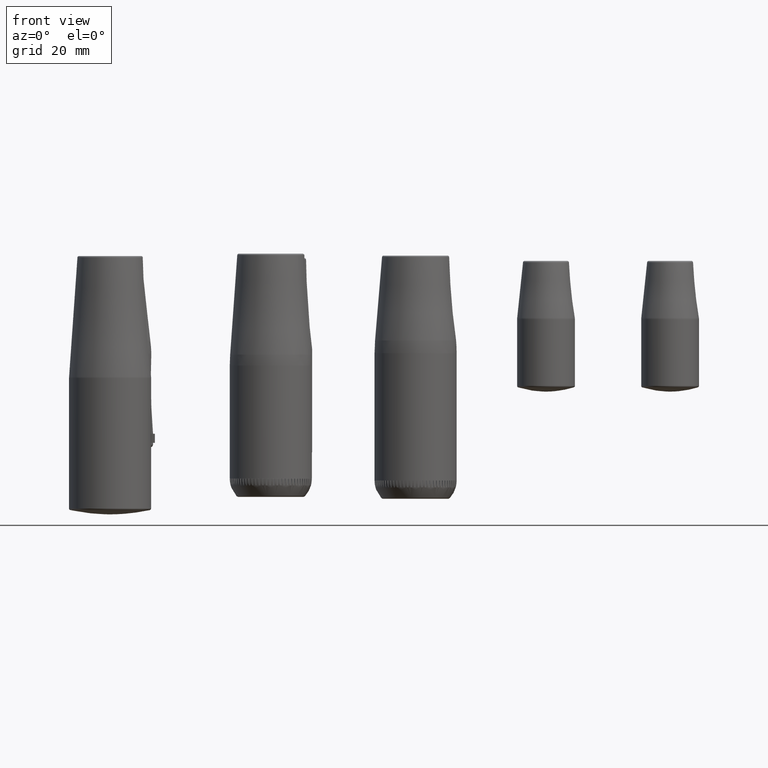
[diagram: clean part render]
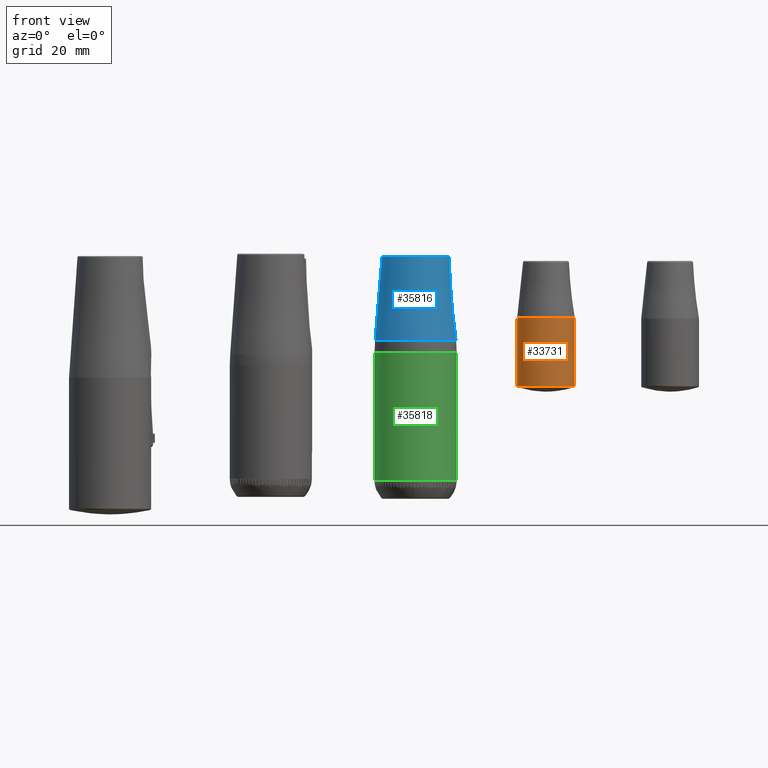
[diagram: same view with three faces highlighted in distinct colors, each labeled with its STEP entity id]
A machine part, front view with three faces highlighted in distinct colors.
Their STEP definitions:

[orange] entity #33731 — the highlighted cylindrical surface (bore or boss wall) has radius 9.5 mm, axis along (-0, -0, -1).
#5022=B_SPLINE_CURVE_WITH_KNOTS('',3,(#51953,#51954,#51955,#51956,#51957,
#51958,#51959,#51960,#51961,#51962,#51963,#51964,#51965,#51966,#51967),
 .UNSPECIFIED.,.T.,.F.,(4,1,1,1,1,1,1,1,1,1,1,1,4),(-3.14159265358979,-2.61799656608309,
-2.09440047857638,-1.57080439106967,-1.04720734447724,-0.5236102978848,
-1.32512923638473E-5,0.523584636090729,1.04718252347382,1.57078041085691,
2.09438449176787,2.61798857267883,3.14159265358979),.UNSPECIFIED.);
#6632=CYLINDRICAL_SURFACE('',#35858,9.5);
#7326=FACE_BOUND('',#9619,.T.);
#7500=FACE_OUTER_BOUND('',#9618,.T.);
#9618=EDGE_LOOP('',(#23063));
#9619=EDGE_LOOP('',(#23064));
#11877=CIRCLE('',#35859,9.5);
#14298=VERTEX_POINT('',#51951);
#14300=VERTEX_POINT('',#52049);
#17709=EDGE_CURVE('',#14298,#14298,#5022,.T.);
#17712=EDGE_CURVE('',#14300,#14300,#11877,.T.);
#23063=ORIENTED_EDGE('',*,*,#17712,.F.);
#23064=ORIENTED_EDGE('',*,*,#17709,.F.);
#33731=ADVANCED_FACE('',(#7500,#7326),#6632,.T.);
#35858=AXIS2_PLACEMENT_3D('',#52048,#40418,#40419);
#35859=AXIS2_PLACEMENT_3D('',#52050,#40420,#40421);
#40418=DIRECTION('center_axis',(0.,0.,-1.));
#40419=DIRECTION('ref_axis',(1.,0.,0.));
#40420=DIRECTION('center_axis',(0.,0.,1.));
#40421=DIRECTION('ref_axis',(1.,-1.22464679914735E-16,0.));
#51951=CARTESIAN_POINT('',(-9.5,5.55111512312578E-16,-41.1314971342156));
#51953=CARTESIAN_POINT('Ctrl Pts',(-9.50066543954258,9.15514907235499E-5,
-41.1314948234731));
#51954=CARTESIAN_POINT('Ctrl Pts',(-9.50069382991416,1.65791559775531,-41.131494853506));
#51955=CARTESIAN_POINT('Ctrl Pts',(-8.61371804615387,4.97341848881517,-41.1315289400703));
#51956=CARTESIAN_POINT('Ctrl Pts',(-4.97193772282952,8.61221813219561,-41.131526397337));
#51957=CARTESIAN_POINT('Ctrl Pts',(-0.000229868969395321,9.94487691506107,
-41.1314774621608));
#51958=CARTESIAN_POINT('Ctrl Pts',(4.97355951724087,8.61350848411571,-41.131528780723));
#51959=CARTESIAN_POINT('Ctrl Pts',(8.61203067815588,4.97220403394297,-41.1315261168311));
#51960=CARTESIAN_POINT('Ctrl Pts',(9.94502057554958,-8.11805645432433E-5,
-41.1314778134987));
#51961=CARTESIAN_POINT('Ctrl Pts',(8.61205950735636,-4.97209134176979,-41.1315260392819));
#51962=CARTESIAN_POINT('Ctrl Pts',(4.97344983207419,-8.61370240245316,-41.1315290948087));
#51963=CARTESIAN_POINT('Ctrl Pts',(-7.58967291566984E-5,-9.94466365249716,
-41.1314770679399));
#51964=CARTESIAN_POINT('Ctrl Pts',(-4.97336272629746,-8.61386678189045,
-41.1315292669057));
#51965=CARTESIAN_POINT('Ctrl Pts',(-8.61221814372814,-4.97164220129174,
-41.1315259509841));
#51966=CARTESIAN_POINT('Ctrl Pts',(-9.50063704873758,-1.65775780370587,
-41.1314947934396));
#51967=CARTESIAN_POINT('Ctrl Pts',(-9.50066543954258,9.15514907234849E-5,
-41.1314948234731));
#52048=CARTESIAN_POINT('Origin',(0.,0.,-19.));
#52049=CARTESIAN_POINT('',(-9.5,0.,-19.1574597618142));
#52050=CARTESIAN_POINT('Origin',(0.,0.,-19.1574597618142));

[blue] entity #35816 — the highlighted conical surface has half-angle 4.764 deg.
#7480=FACE_BOUND('',#11858,.T.);
#9585=FACE_OUTER_BOUND('',#11857,.T.);
#11857=EDGE_LOOP('',(#33535,#33536));
#11858=EDGE_LOOP('',(#33537));
#14276=CIRCLE('',#40340,11.0382064383394);
#14277=CIRCLE('',#40342,13.327287912244);
#14278=CIRCLE('',#40343,13.327287912244);
#17686=VERTEX_POINT('',#70924);
#17687=VERTEX_POINT('',#70927);
#17688=VERTEX_POINT('',#70928);
#23017=EDGE_CURVE('',#17686,#17686,#14276,.T.);
#23018=EDGE_CURVE('',#17687,#17688,#14277,.T.);
#23019=EDGE_CURVE('',#17688,#17687,#14278,.T.);
#33535=ORIENTED_EDGE('',*,*,#23018,.F.);
#33536=ORIENTED_EDGE('',*,*,#23019,.F.);
#33537=ORIENTED_EDGE('',*,*,#23017,.F.);
#33712=CONICAL_SURFACE('',#40341,13.5,4.76364169072617);
#35816=ADVANCED_FACE('',(#9585,#7480),#33712,.T.);
#40340=AXIS2_PLACEMENT_3D('',#70925,#51628,#51629);
#40341=AXIS2_PLACEMENT_3D('',#70926,#51630,#51631);
#40342=AXIS2_PLACEMENT_3D('',#70929,#51632,#51633);
#40343=AXIS2_PLACEMENT_3D('',#70930,#51634,#51635);
#51628=DIRECTION('center_axis',(0.,0.,1.));
#51629=DIRECTION('ref_axis',(1.,1.22464679914735E-16,0.));
#51630=DIRECTION('center_axis',(0.,0.,-1.));
#51631=DIRECTION('ref_axis',(-1.,0.,0.));
#51632=DIRECTION('center_axis',(0.,0.,-1.));
#51633=DIRECTION('ref_axis',(-1.,0.,0.));
#51634=DIRECTION('center_axis',(0.,0.,-1.));
#51635=DIRECTION('ref_axis',(-1.,0.,0.));
#70924=CARTESIAN_POINT('',(-11.0382064383394,-2.70358083660802E-15,-0.458477260073136));
#70925=CARTESIAN_POINT('Origin',(0.,-2.46519032881566E-31,-0.458477260073136));
#70926=CARTESIAN_POINT('Origin',(0.,0.,-30.));
#70927=CARTESIAN_POINT('',(13.327287912244,-1.63212204830448E-15,-27.9274549469279));
#70928=CARTESIAN_POINT('',(-13.327287912244,0.,-27.9274549469279));
#70929=CARTESIAN_POINT('Origin',(0.,0.,-27.9274549469279));
#70930=CARTESIAN_POINT('Origin',(0.,0.,-27.9274549469279));

[green] entity #35818 — the highlighted cylindrical surface (bore or boss wall) has radius 13.5 mm, axis along (-0, -0, -1).
#7313=CYLINDRICAL_SURFACE('',#40346,13.5);
#7481=FACE_BOUND('',#11861,.T.);
#9587=FACE_OUTER_BOUND('',#11860,.T.);
#11860=EDGE_LOOP('',(#33544,#33545,#33546,#33547,#33548,#33549,#33550,#33551,
#33552,#33553,#33554,#33555,#33556,#33557,#33558,#33559,#33560,#33561,#33562,
#33563,#33564,#33565,#33566,#33567,#33568,#33569,#33570,#33571,#33572,#33573,
#33574,#33575,#33576,#33577,#33578,#33579,#33580,#33581,#33582,#33583,#33584,
#33585,#33586,#33587,#33588,#33589,#33590,#33591,#33592,#33593,#33594,#33595,
#33596,#33597,#33598,#33599,#33600,#33601,#33602,#33603,#33604,#33605,#33606,
#33607,#33608,#33609,#33610,#33611,#33612,#33613,#33614,#33615,#33616,#33617,
#33618,#33619,#33620,#33621,#33622,#33623,#33624,#33625,#33626,#33627,#33628,
#33629,#33630,#33631,#33632,#33633,#33634,#33635,#33636,#33637,#33638,#33639,
#33640,#33641,#33642,#33643,#33644,#33645,#33646,#33647,#33648,#33649,#33650,
#33651,#33652,#33653,#33654,#33655,#33656,#33657,#33658,#33659,#33660,#33661,
#33662,#33663,#33664,#33665,#33666,#33667,#33668,#33669,#33670,#33671,#33672,
#33673,#33674,#33675,#33676,#33677,#33678,#33679,#33680,#33681,#33682,#33683,
#33684));
#11861=EDGE_LOOP('',(#33685,#33686));
#13921=CIRCLE('',#39699,13.5);
#13925=CIRCLE('',#39703,13.5);
#13929=CIRCLE('',#39707,13.5);
#13933=CIRCLE('',#39711,13.5);
#13937=CIRCLE('',#39715,13.5);
#13941=CIRCLE('',#39719,13.5);
#13945=CIRCLE('',#39723,13.5);
#13949=CIRCLE('',#39727,13.5);
#13953=CIRCLE('',#39731,13.5);
#13957=CIRCLE('',#39735,13.5);
#13961=CIRCLE('',#39739,13.5);
#13965=CIRCLE('',#39743,13.5);
#13969=CIRCLE('',#39747,13.5);
#13973=CIRCLE('',#39751,13.5);
#13977=CIRCLE('',#39755,13.5);
#13981=CIRCLE('',#39759,13.5);
#13985=CIRCLE('',#39763,13.5);
#13989=CIRCLE('',#39767,13.5);
#13993=CIRCLE('',#39771,13.5);
#13997=CIRCLE('',#39775,13.5);
#14001=CIRCLE('',#39779,13.5);
#14005=CIRCLE('',#39783,13.5);
#14009=CIRCLE('',#39787,13.5);
#14013=CIRCLE('',#39791,13.5);
#14017=CIRCLE('',#39795,13.5);
#14021=CIRCLE('',#39799,13.5);
#14025=CIRCLE('',#39803,13.5);
#14029=CIRCLE('',#39807,13.5);
#14033=CIRCLE('',#39811,13.5);
#14037=CIRCLE('',#39815,13.5);
#14041=CIRCLE('',#39819,13.5);
#14045=CIRCLE('',#39823,13.5);
#14049=CIRCLE('',#39827,13.5);
#14053=CIRCLE('',#39831,13.5);
#14057=CIRCLE('',#39835,13.5);
#14061=CIRCLE('',#39839,13.5);
#14065=CIRCLE('',#39843,13.5);
#14069=CIRCLE('',#39847,13.5);
#14073=CIRCLE('',#39851,13.5);
#14077=CIRCLE('',#39855,13.5);
#14081=CIRCLE('',#39859,13.5);
#14085=CIRCLE('',#39863,13.5);
#14089=CIRCLE('',#39867,13.5);
#14093=CIRCLE('',#39871,13.5);
#14097=CIRCLE('',#39875,13.5);
#14101=CIRCLE('',#39879,13.5);
#14105=CIRCLE('',#39883,13.5);
#14109=CIRCLE('',#39887,13.5);
#14113=CIRCLE('',#39891,13.5);
#14117=CIRCLE('',#39895,13.5);
#14121=CIRCLE('',#39899,13.5);
#14125=CIRCLE('',#39903,13.5);
#14129=CIRCLE('',#39907,13.5);
#14133=CIRCLE('',#39911,13.5);
#14137=CIRCLE('',#39915,13.5);
#14141=CIRCLE('',#39919,13.5);
#14145=CIRCLE('',#39923,13.5);
#14149=CIRCLE('',#39927,13.5);
#14153=CIRCLE('',#39931,13.5);
#14157=CIRCLE('',#39935,13.5);
#14161=CIRCLE('',#39939,13.5);
#14165=CIRCLE('',#39943,13.5);
#14169=CIRCLE('',#39947,13.5);
#14173=CIRCLE('',#39951,13.5);
#14177=CIRCLE('',#39955,13.5);
#14181=CIRCLE('',#39959,13.5);
#14185=CIRCLE('',#39963,13.5);
#14189=CIRCLE('',#39967,13.5);
#14193=CIRCLE('',#39971,13.5);
#14197=CIRCLE('',#39975,13.5);
#14201=CIRCLE('',#39979,13.5);
#14202=CIRCLE('',#39984,13.5);
#14203=CIRCLE('',#39989,13.5);
#14204=CIRCLE('',#39994,13.5);
#14205=CIRCLE('',#39999,13.5);
#14206=CIRCLE('',#40004,13.5);
#14207=CIRCLE('',#40009,13.5);
#14208=CIRCLE('',#40014,13.5);
#14209=CIRCLE('',#40019,13.5);
#14210=CIRCLE('',#40024,13.5);
#14211=CIRCLE('',#40029,13.5);
#14212=CIRCLE('',#40034,13.5);
#14213=CIRCLE('',#40039,13.5);
#14214=CIRCLE('',#40044,13.5);
#14215=CIRCLE('',#40049,13.5);
#14216=CIRCLE('',#40054,13.5);
#14217=CIRCLE('',#40059,13.5);
#14218=CIRCLE('',#40064,13.5);
#14219=CIRCLE('',#40069,13.5);
#14220=CIRCLE('',#40074,13.5);
#14221=CIRCLE('',#40079,13.5);
#14222=CIRCLE('',#40084,13.5);
#14223=CIRCLE('',#40089,13.5);
#14224=CIRCLE('',#40094,13.5);
#14225=CIRCLE('',#40099,13.5);
#14226=CIRCLE('',#40104,13.5);
#14227=CIRCLE('',#40109,13.5);
#14228=CIRCLE('',#40114,13.5);
#14229=CIRCLE('',#40119,13.5);
#14230=CIRCLE('',#40124,13.5);
#14231=CIRCLE('',#40129,13.5);
#14232=CIRCLE('',#40134,13.5);
#14233=CIRCLE('',#40139,13.5);
#14234=CIRCLE('',#40144,13.5);
#14235=CIRCLE('',#40149,13.5);
#14236=CIRCLE('',#40154,13.5);
#14237=CIRCLE('',#40159,13.5);
#14238=CIRCLE('',#40164,13.5);
#14239=CIRCLE('',#40169,13.5);
#14240=CIRCLE('',#40174,13.5);
#14241=CIRCLE('',#40179,13.5);
#14242=CIRCLE('',#40184,13.5);
#14243=CIRCLE('',#40189,13.5);
#14244=CIRCLE('',#40194,13.5);
#14245=CIRCLE('',#40199,13.5);
#14246=CIRCLE('',#40204,13.5);
#14247=CIRCLE('',#40209,13.5);
#14248=CIRCLE('',#40214,13.5);
#14249=CIRCLE('',#40219,13.5);
#14250=CIRCLE('',#40224,13.5);
#14251=CIRCLE('',#40229,13.5);
#14252=CIRCLE('',#40234,13.5);
#14253=CIRCLE('',#40239,13.5);
#14254=CIRCLE('',#40244,13.5);
#14255=CIRCLE('',#40249,13.5);
#14256=CIRCLE('',#40254,13.5);
#14257=CIRCLE('',#40259,13.5);
#14258=CIRCLE('',#40264,13.5);
#14259=CIRCLE('',#40269,13.5);
#14260=CIRCLE('',#40274,13.5);
#14261=CIRCLE('',#40279,13.5);
#14262=CIRCLE('',#40284,13.5);
#14263=CIRCLE('',#40289,13.5);
#14264=CIRCLE('',#40294,13.5);
#14265=CIRCLE('',#40299,13.5);
#14266=CIRCLE('',#40304,13.5);
#14267=CIRCLE('',#40309,13.5);
#14268=CIRCLE('',#40314,13.5);
#14269=CIRCLE('',#40319,13.5);
#14270=CIRCLE('',#40324,13.5);
#14271=CIRCLE('',#40329,13.5);
#14279=CIRCLE('',#40344,13.5);
#14280=CIRCLE('',#40345,13.5);
#17261=VERTEX_POINT('',#66370);
#17262=VERTEX_POINT('',#66374);
#17265=VERTEX_POINT('',#66380);
#17266=VERTEX_POINT('',#66382);
#17269=VERTEX_POINT('',#66388);
#17270=VERTEX_POINT('',#66390);
#17273=VERTEX_POINT('',#66396);
#17274=VERTEX_POINT('',#66398);
#17277=VERTEX_POINT('',#66404);
#17278=VERTEX_POINT('',#66406);
#17281=VERTEX_POINT('',#66412);
#17282=VERTEX_POINT('',#66414);
#17285=VERTEX_POINT('',#66420);
#17286=VERTEX_POINT('',#66422);
#17289=VERTEX_POINT('',#66428);
#17290=VERTEX_POINT('',#66430);
#17293=VERTEX_POINT('',#66436);
#17294=VERTEX_POINT('',#66438);
#17297=VERTEX_POINT('',#66444);
#17298=VERTEX_POINT('',#66446);
#17301=VERTEX_POINT('',#66452);
#17302=VERTEX_POINT('',#66454);
#17305=VERTEX_POINT('',#66460);
#17306=VERTEX_POINT('',#66462);
#17309=VERTEX_POINT('',#66468);
#17310=VERTEX_POINT('',#66470);
#17313=VERTEX_POINT('',#66476);
#17314=VERTEX_POINT('',#66478);
#17317=VERTEX_POINT('',#66484);
#17318=VERTEX_POINT('',#66486);
#17321=VERTEX_POINT('',#66492);
#17322=VERTEX_POINT('',#66494);
#17325=VERTEX_POINT('',#66500);
#17326=VERTEX_POINT('',#66502);
#17329=VERTEX_POINT('',#66508);
#17330=VERTEX_POINT('',#66510);
#17333=VERTEX_POINT('',#66516);
#17334=VERTEX_POINT('',#66518);
#17337=VERTEX_POINT('',#66524);
#17338=VERTEX_POINT('',#66526);
#17341=VERTEX_POINT('',#66532);
#17342=VERTEX_POINT('',#66534);
#17345=VERTEX_POINT('',#66540);
#17346=VERTEX_POINT('',#66542);
#17349=VERTEX_POINT('',#66548);
#17350=VERTEX_POINT('',#66550);
#17353=VERTEX_POINT('',#66556);
#17354=VERTEX_POINT('',#66558);
#17357=VERTEX_POINT('',#66564);
#17358=VERTEX_POINT('',#66566);
#17361=VERTEX_POINT('',#66572);
#17362=VERTEX_POINT('',#66574);
#17365=VERTEX_POINT('',#66580);
#17366=VERTEX_POINT('',#66582);
#17369=VERTEX_POINT('',#66588);
#17370=VERTEX_POINT('',#66590);
#17373=VERTEX_POINT('',#66596);
#17374=VERTEX_POINT('',#66598);
#17377=VERTEX_POINT('',#66604);
#17378=VERTEX_POINT('',#66606);
#17381=VERTEX_POINT('',#66612);
#17382=VERTEX_POINT('',#66614);
#17385=VERTEX_POINT('',#66620);
#17386=VERTEX_POINT('',#66622);
#17389=VERTEX_POINT('',#66628);
#17390=VERTEX_POINT('',#66630);
#17393=VERTEX_POINT('',#66636);
#17394=VERTEX_POINT('',#66638);
#17397=VERTEX_POINT('',#66644);
#17398=VERTEX_POINT('',#66646);
#17401=VERTEX_POINT('',#66652);
#17402=VERTEX_POINT('',#66654);
#17405=VERTEX_POINT('',#66660);
#17406=VERTEX_POINT('',#66662);
#17409=VERTEX_POINT('',#66668);
#17410=VERTEX_POINT('',#66670);
#17413=VERTEX_POINT('',#66676);
#17414=VERTEX_POINT('',#66678);
#17417=VERTEX_POINT('',#66684);
#17418=VERTEX_POINT('',#66686);
#17421=VERTEX_POINT('',#66692);
#17422=VERTEX_POINT('',#66694);
#17425=VERTEX_POINT('',#66700);
#17426=VERTEX_POINT('',#66702);
#17429=VERTEX_POINT('',#66708);
#17430=VERTEX_POINT('',#66710);
#17433=VERTEX_POINT('',#66716);
#17434=VERTEX_POINT('',#66718);
#17437=VERTEX_POINT('',#66724);
#17438=VERTEX_POINT('',#66726);
#17441=VERTEX_POINT('',#66732);
#17442=VERTEX_POINT('',#66734);
#17445=VERTEX_POINT('',#66740);
#17446=VERTEX_POINT('',#66742);
#17449=VERTEX_POINT('',#66748);
#17450=VERTEX_POINT('',#66750);
#17453=VERTEX_POINT('',#66756);
#17454=VERTEX_POINT('',#66758);
#17457=VERTEX_POINT('',#66764);
#17458=VERTEX_POINT('',#66766);
#17461=VERTEX_POINT('',#66772);
#17462=VERTEX_POINT('',#66774);
#17465=VERTEX_POINT('',#66780);
#17466=VERTEX_POINT('',#66782);
#17469=VERTEX_POINT('',#66788);
#17470=VERTEX_POINT('',#66790);
#17473=VERTEX_POINT('',#66796);
#17474=VERTEX_POINT('',#66798);
#17477=VERTEX_POINT('',#66804);
#17478=VERTEX_POINT('',#66806);
#17481=VERTEX_POINT('',#66812);
#17482=VERTEX_POINT('',#66814);
#17485=VERTEX_POINT('',#66820);
#17486=VERTEX_POINT('',#66822);
#17489=VERTEX_POINT('',#66828);
#17490=VERTEX_POINT('',#66830);
#17493=VERTEX_POINT('',#66836);
#17494=VERTEX_POINT('',#66838);
#17497=VERTEX_POINT('',#66844);
#17498=VERTEX_POINT('',#66846);
#17501=VERTEX_POINT('',#66852);
#17502=VERTEX_POINT('',#66854);
#17505=VERTEX_POINT('',#66860);
#17506=VERTEX_POINT('',#66862);
#17509=VERTEX_POINT('',#66868);
#17510=VERTEX_POINT('',#66870);
#17513=VERTEX_POINT('',#66876);
#17514=VERTEX_POINT('',#66878);
#17517=VERTEX_POINT('',#66884);
#17518=VERTEX_POINT('',#66886);
#17521=VERTEX_POINT('',#66892);
#17522=VERTEX_POINT('',#66894);
#17525=VERTEX_POINT('',#66900);
#17526=VERTEX_POINT('',#66902);
#17529=VERTEX_POINT('',#66908);
#17530=VERTEX_POINT('',#66910);
#17533=VERTEX_POINT('',#66916);
#17534=VERTEX_POINT('',#66918);
#17537=VERTEX_POINT('',#66924);
#17538=VERTEX_POINT('',#66926);
#17541=VERTEX_POINT('',#66932);
#17689=VERTEX_POINT('',#70958);
#17690=VERTEX_POINT('',#70962);
#22312=EDGE_CURVE('',#17261,#17262,#13921,.T.);
#22316=EDGE_CURVE('',#17265,#17266,#13925,.T.);
#22320=EDGE_CURVE('',#17269,#17270,#13929,.T.);
#22324=EDGE_CURVE('',#17273,#17274,#13933,.T.);
#22328=EDGE_CURVE('',#17277,#17278,#13937,.T.);
#22332=EDGE_CURVE('',#17281,#17282,#13941,.T.);
#22336=EDGE_CURVE('',#17285,#17286,#13945,.T.);
#22340=EDGE_CURVE('',#17289,#17290,#13949,.T.);
#22344=EDGE_CURVE('',#17293,#17294,#13953,.T.);
#22348=EDGE_CURVE('',#17297,#17298,#13957,.T.);
#22352=EDGE_CURVE('',#17301,#17302,#13961,.T.);
#22356=EDGE_CURVE('',#17305,#17306,#13965,.T.);
#22360=EDGE_CURVE('',#17309,#17310,#13969,.T.);
#22364=EDGE_CURVE('',#17313,#17314,#13973,.T.);
#22368=EDGE_CURVE('',#17317,#17318,#13977,.T.);
#22372=EDGE_CURVE('',#17321,#17322,#13981,.T.);
#22376=EDGE_CURVE('',#17325,#17326,#13985,.T.);
#22380=EDGE_CURVE('',#17329,#17330,#13989,.T.);
#22384=EDGE_CURVE('',#17333,#17334,#13993,.T.);
#22388=EDGE_CURVE('',#17337,#17338,#13997,.T.);
#22392=EDGE_CURVE('',#17341,#17342,#14001,.T.);
#22396=EDGE_CURVE('',#17345,#17346,#14005,.T.);
#22400=EDGE_CURVE('',#17349,#17350,#14009,.T.);
#22404=EDGE_CURVE('',#17353,#17354,#14013,.T.);
#22408=EDGE_CURVE('',#17357,#17358,#14017,.T.);
#22412=EDGE_CURVE('',#17361,#17362,#14021,.T.);
#22416=EDGE_CURVE('',#17365,#17366,#14025,.T.);
#22420=EDGE_CURVE('',#17369,#17370,#14029,.T.);
#22424=EDGE_CURVE('',#17373,#17374,#14033,.T.);
#22428=EDGE_CURVE('',#17377,#17378,#14037,.T.);
#22432=EDGE_CURVE('',#17381,#17382,#14041,.T.);
#22436=EDGE_CURVE('',#17385,#17386,#14045,.T.);
#22440=EDGE_CURVE('',#17389,#17390,#14049,.T.);
#22444=EDGE_CURVE('',#17393,#17394,#14053,.T.);
#22448=EDGE_CURVE('',#17397,#17398,#14057,.T.);
#22452=EDGE_CURVE('',#17401,#17402,#14061,.T.);
#22456=EDGE_CURVE('',#17405,#17406,#14065,.T.);
#22460=EDGE_CURVE('',#17409,#17410,#14069,.T.);
#22464=EDGE_CURVE('',#17413,#17414,#14073,.T.);
#22468=EDGE_CURVE('',#17417,#17418,#14077,.T.);
#22472=EDGE_CURVE('',#17421,#17422,#14081,.T.);
#22476=EDGE_CURVE('',#17425,#17426,#14085,.T.);
#22480=EDGE_CURVE('',#17429,#17430,#14089,.T.);
#22484=EDGE_CURVE('',#17433,#17434,#14093,.T.);
#22488=EDGE_CURVE('',#17437,#17438,#14097,.T.);
#22492=EDGE_CURVE('',#17441,#17442,#14101,.T.);
#22496=EDGE_CURVE('',#17445,#17446,#14105,.T.);
#22500=EDGE_CURVE('',#17449,#17450,#14109,.T.);
#22504=EDGE_CURVE('',#17453,#17454,#14113,.T.);
#22508=EDGE_CURVE('',#17457,#17458,#14117,.T.);
#22512=EDGE_CURVE('',#17461,#17462,#14121,.T.);
#22516=EDGE_CURVE('',#17465,#17466,#14125,.T.);
#22520=EDGE_CURVE('',#17469,#17470,#14129,.T.);
#22524=EDGE_CURVE('',#17473,#17474,#14133,.T.);
#22528=EDGE_CURVE('',#17477,#17478,#14137,.T.);
#22532=EDGE_CURVE('',#17481,#17482,#14141,.T.);
#22536=EDGE_CURVE('',#17485,#17486,#14145,.T.);
#22540=EDGE_CURVE('',#17489,#17490,#14149,.T.);
#22544=EDGE_CURVE('',#17493,#17494,#14153,.T.);
#22548=EDGE_CURVE('',#17497,#17498,#14157,.T.);
#22552=EDGE_CURVE('',#17501,#17502,#14161,.T.);
#22556=EDGE_CURVE('',#17505,#17506,#14165,.T.);
#22560=EDGE_CURVE('',#17509,#17510,#14169,.T.);
#22564=EDGE_CURVE('',#17513,#17514,#14173,.T.);
#22568=EDGE_CURVE('',#17517,#17518,#14177,.T.);
#22572=EDGE_CURVE('',#17521,#17522,#14181,.T.);
#22576=EDGE_CURVE('',#17525,#17526,#14185,.T.);
#22580=EDGE_CURVE('',#17529,#17530,#14189,.T.);
#22584=EDGE_CURVE('',#17533,#17534,#14193,.T.);
#22588=EDGE_CURVE('',#17537,#17538,#14197,.T.);
#22592=EDGE_CURVE('',#17541,#17261,#14201,.T.);
#22597=EDGE_CURVE('',#17462,#17465,#14202,.T.);
#22603=EDGE_CURVE('',#17454,#17457,#14203,.T.);
#22609=EDGE_CURVE('',#17446,#17449,#14204,.T.);
#22615=EDGE_CURVE('',#17438,#17441,#14205,.T.);
#22621=EDGE_CURVE('',#17430,#17433,#14206,.T.);
#22627=EDGE_CURVE('',#17422,#17425,#14207,.T.);
#22633=EDGE_CURVE('',#17414,#17417,#14208,.T.);
#22639=EDGE_CURVE('',#17406,#17409,#14209,.T.);
#22645=EDGE_CURVE('',#17398,#17401,#14210,.T.);
#22651=EDGE_CURVE('',#17390,#17393,#14211,.T.);
#22657=EDGE_CURVE('',#17382,#17385,#14212,.T.);
#22663=EDGE_CURVE('',#17374,#17377,#14213,.T.);
#22669=EDGE_CURVE('',#17366,#17369,#14214,.T.);
#22675=EDGE_CURVE('',#17358,#17361,#14215,.T.);
#22681=EDGE_CURVE('',#17350,#17353,#14216,.T.);
#22687=EDGE_CURVE('',#17342,#17345,#14217,.T.);
#22693=EDGE_CURVE('',#17334,#17337,#14218,.T.);
#22699=EDGE_CURVE('',#17326,#17329,#14219,.T.);
#22705=EDGE_CURVE('',#17318,#17321,#14220,.T.);
#22711=EDGE_CURVE('',#17310,#17313,#14221,.T.);
#22717=EDGE_CURVE('',#17302,#17305,#14222,.T.);
#22723=EDGE_CURVE('',#17294,#17297,#14223,.T.);
#22729=EDGE_CURVE('',#17286,#17289,#14224,.T.);
#22735=EDGE_CURVE('',#17278,#17281,#14225,.T.);
#22741=EDGE_CURVE('',#17270,#17273,#14226,.T.);
#22747=EDGE_CURVE('',#17262,#17265,#14227,.T.);
#22753=EDGE_CURVE('',#17534,#17537,#14228,.T.);
#22759=EDGE_CURVE('',#17526,#17529,#14229,.T.);
#22765=EDGE_CURVE('',#17518,#17521,#14230,.T.);
#22771=EDGE_CURVE('',#17510,#17513,#14231,.T.);
#22777=EDGE_CURVE('',#17502,#17505,#14232,.T.);
#22783=EDGE_CURVE('',#17494,#17497,#14233,.T.);
#22789=EDGE_CURVE('',#17486,#17489,#14234,.T.);
#22795=EDGE_CURVE('',#17478,#17481,#14235,.T.);
#22801=EDGE_CURVE('',#17470,#17473,#14236,.T.);
#22807=EDGE_CURVE('',#17474,#17477,#14237,.T.);
#22813=EDGE_CURVE('',#17482,#17485,#14238,.T.);
#22819=EDGE_CURVE('',#17490,#17493,#14239,.T.);
#22825=EDGE_CURVE('',#17498,#17501,#14240,.T.);
#22831=EDGE_CURVE('',#17506,#17509,#14241,.T.);
#22837=EDGE_CURVE('',#17514,#17517,#14242,.T.);
#22843=EDGE_CURVE('',#17522,#17525,#14243,.T.);
#22849=EDGE_CURVE('',#17530,#17533,#14244,.T.);
#22855=EDGE_CURVE('',#17538,#17541,#14245,.T.);
#22861=EDGE_CURVE('',#17266,#17269,#14246,.T.);
#22867=EDGE_CURVE('',#17274,#17277,#14247,.T.);
#22873=EDGE_CURVE('',#17282,#17285,#14248,.T.);
#22879=EDGE_CURVE('',#17290,#17293,#14249,.T.);
#22885=EDGE_CURVE('',#17298,#17301,#14250,.T.);
#22891=EDGE_CURVE('',#17306,#17309,#14251,.T.);
#22897=EDGE_CURVE('',#17314,#17317,#14252,.T.);
#22903=EDGE_CURVE('',#17322,#17325,#14253,.T.);
#22909=EDGE_CURVE('',#17330,#17333,#14254,.T.);
#22915=EDGE_CURVE('',#17338,#17341,#14255,.T.);
#22921=EDGE_CURVE('',#17346,#17349,#14256,.T.);
#22927=EDGE_CURVE('',#17354,#17357,#14257,.T.);
#22933=EDGE_CURVE('',#17362,#17365,#14258,.T.);
#22939=EDGE_CURVE('',#17370,#17373,#14259,.T.);
#22945=EDGE_CURVE('',#17378,#17381,#14260,.T.);
#22951=EDGE_CURVE('',#17386,#17389,#14261,.T.);
#22957=EDGE_CURVE('',#17394,#17397,#14262,.T.);
#22963=EDGE_CURVE('',#17402,#17405,#14263,.T.);
#22969=EDGE_CURVE('',#17410,#17413,#14264,.T.);
#22975=EDGE_CURVE('',#17418,#17421,#14265,.T.);
#22981=EDGE_CURVE('',#17426,#17429,#14266,.T.);
#22987=EDGE_CURVE('',#17434,#17437,#14267,.T.);
#22993=EDGE_CURVE('',#17442,#17445,#14268,.T.);
#22999=EDGE_CURVE('',#17450,#17453,#14269,.T.);
#23005=EDGE_CURVE('',#17458,#17461,#14270,.T.);
#23011=EDGE_CURVE('',#17466,#17469,#14271,.T.);
#23021=EDGE_CURVE('',#17689,#17690,#14279,.T.);
#23022=EDGE_CURVE('',#17690,#17689,#14280,.T.);
#33544=ORIENTED_EDGE('',*,*,#22452,.F.);
#33545=ORIENTED_EDGE('',*,*,#22645,.F.);
#33546=ORIENTED_EDGE('',*,*,#22448,.F.);
#33547=ORIENTED_EDGE('',*,*,#22957,.F.);
#33548=ORIENTED_EDGE('',*,*,#22444,.F.);
#33549=ORIENTED_EDGE('',*,*,#22651,.F.);
#33550=ORIENTED_EDGE('',*,*,#22440,.F.);
#33551=ORIENTED_EDGE('',*,*,#22951,.F.);
#33552=ORIENTED_EDGE('',*,*,#22436,.F.);
#33553=ORIENTED_EDGE('',*,*,#22657,.F.);
#33554=ORIENTED_EDGE('',*,*,#22432,.F.);
#33555=ORIENTED_EDGE('',*,*,#22945,.F.);
#33556=ORIENTED_EDGE('',*,*,#22428,.F.);
#33557=ORIENTED_EDGE('',*,*,#22663,.F.);
#33558=ORIENTED_EDGE('',*,*,#22424,.F.);
#33559=ORIENTED_EDGE('',*,*,#22939,.F.);
#33560=ORIENTED_EDGE('',*,*,#22420,.F.);
#33561=ORIENTED_EDGE('',*,*,#22669,.F.);
#33562=ORIENTED_EDGE('',*,*,#22416,.F.);
#33563=ORIENTED_EDGE('',*,*,#22933,.F.);
#33564=ORIENTED_EDGE('',*,*,#22412,.F.);
#33565=ORIENTED_EDGE('',*,*,#22675,.F.);
#33566=ORIENTED_EDGE('',*,*,#22408,.F.);
#33567=ORIENTED_EDGE('',*,*,#22927,.F.);
#33568=ORIENTED_EDGE('',*,*,#22404,.F.);
#33569=ORIENTED_EDGE('',*,*,#22681,.F.);
#33570=ORIENTED_EDGE('',*,*,#22400,.F.);
#33571=ORIENTED_EDGE('',*,*,#22921,.F.);
#33572=ORIENTED_EDGE('',*,*,#22396,.F.);
#33573=ORIENTED_EDGE('',*,*,#22687,.F.);
#33574=ORIENTED_EDGE('',*,*,#22392,.F.);
#33575=ORIENTED_EDGE('',*,*,#22915,.F.);
#33576=ORIENTED_EDGE('',*,*,#22388,.F.);
#33577=ORIENTED_EDGE('',*,*,#22693,.F.);
#33578=ORIENTED_EDGE('',*,*,#22384,.F.);
#33579=ORIENTED_EDGE('',*,*,#22909,.F.);
#33580=ORIENTED_EDGE('',*,*,#22380,.F.);
#33581=ORIENTED_EDGE('',*,*,#22699,.F.);
#33582=ORIENTED_EDGE('',*,*,#22376,.F.);
#33583=ORIENTED_EDGE('',*,*,#22903,.F.);
#33584=ORIENTED_EDGE('',*,*,#22372,.F.);
#33585=ORIENTED_EDGE('',*,*,#22705,.F.);
#33586=ORIENTED_EDGE('',*,*,#22368,.F.);
#33587=ORIENTED_EDGE('',*,*,#22897,.F.);
#33588=ORIENTED_EDGE('',*,*,#22364,.F.);
#33589=ORIENTED_EDGE('',*,*,#22711,.F.);
#33590=ORIENTED_EDGE('',*,*,#22360,.F.);
#33591=ORIENTED_EDGE('',*,*,#22891,.F.);
#33592=ORIENTED_EDGE('',*,*,#22356,.F.);
#33593=ORIENTED_EDGE('',*,*,#22717,.F.);
#33594=ORIENTED_EDGE('',*,*,#22352,.F.);
#33595=ORIENTED_EDGE('',*,*,#22885,.F.);
#33596=ORIENTED_EDGE('',*,*,#22348,.F.);
#33597=ORIENTED_EDGE('',*,*,#22723,.F.);
#33598=ORIENTED_EDGE('',*,*,#22344,.F.);
#33599=ORIENTED_EDGE('',*,*,#22879,.F.);
#33600=ORIENTED_EDGE('',*,*,#22340,.F.);
#33601=ORIENTED_EDGE('',*,*,#22729,.F.);
#33602=ORIENTED_EDGE('',*,*,#22336,.F.);
#33603=ORIENTED_EDGE('',*,*,#22873,.F.);
#33604=ORIENTED_EDGE('',*,*,#22332,.F.);
#33605=ORIENTED_EDGE('',*,*,#22735,.F.);
#33606=ORIENTED_EDGE('',*,*,#22328,.F.);
#33607=ORIENTED_EDGE('',*,*,#22867,.F.);
#33608=ORIENTED_EDGE('',*,*,#22324,.F.);
#33609=ORIENTED_EDGE('',*,*,#22741,.F.);
#33610=ORIENTED_EDGE('',*,*,#22320,.F.);
#33611=ORIENTED_EDGE('',*,*,#22861,.F.);
#33612=ORIENTED_EDGE('',*,*,#22316,.F.);
#33613=ORIENTED_EDGE('',*,*,#22747,.F.);
#33614=ORIENTED_EDGE('',*,*,#22312,.F.);
#33615=ORIENTED_EDGE('',*,*,#22592,.F.);
#33616=ORIENTED_EDGE('',*,*,#22855,.F.);
#33617=ORIENTED_EDGE('',*,*,#22588,.F.);
#33618=ORIENTED_EDGE('',*,*,#22753,.F.);
#33619=ORIENTED_EDGE('',*,*,#22584,.F.);
#33620=ORIENTED_EDGE('',*,*,#22849,.F.);
#33621=ORIENTED_EDGE('',*,*,#22580,.F.);
#33622=ORIENTED_EDGE('',*,*,#22759,.F.);
#33623=ORIENTED_EDGE('',*,*,#22576,.F.);
#33624=ORIENTED_EDGE('',*,*,#22843,.F.);
#33625=ORIENTED_EDGE('',*,*,#22572,.F.);
#33626=ORIENTED_EDGE('',*,*,#22765,.F.);
#33627=ORIENTED_EDGE('',*,*,#22568,.F.);
#33628=ORIENTED_EDGE('',*,*,#22837,.F.);
#33629=ORIENTED_EDGE('',*,*,#22564,.F.);
#33630=ORIENTED_EDGE('',*,*,#22771,.F.);
#33631=ORIENTED_EDGE('',*,*,#22560,.F.);
#33632=ORIENTED_EDGE('',*,*,#22831,.F.);
#33633=ORIENTED_EDGE('',*,*,#22556,.F.);
#33634=ORIENTED_EDGE('',*,*,#22777,.F.);
#33635=ORIENTED_EDGE('',*,*,#22552,.F.);
#33636=ORIENTED_EDGE('',*,*,#22825,.F.);
#33637=ORIENTED_EDGE('',*,*,#22548,.F.);
#33638=ORIENTED_EDGE('',*,*,#22783,.F.);
#33639=ORIENTED_EDGE('',*,*,#22544,.F.);
#33640=ORIENTED_EDGE('',*,*,#22819,.F.);
#33641=ORIENTED_EDGE('',*,*,#22540,.F.);
#33642=ORIENTED_EDGE('',*,*,#22789,.F.);
#33643=ORIENTED_EDGE('',*,*,#22536,.F.);
#33644=ORIENTED_EDGE('',*,*,#22813,.F.);
#33645=ORIENTED_EDGE('',*,*,#22532,.F.);
#33646=ORIENTED_EDGE('',*,*,#22795,.F.);
#33647=ORIENTED_EDGE('',*,*,#22528,.F.);
#33648=ORIENTED_EDGE('',*,*,#22807,.F.);
#33649=ORIENTED_EDGE('',*,*,#22524,.F.);
#33650=ORIENTED_EDGE('',*,*,#22801,.F.);
#33651=ORIENTED_EDGE('',*,*,#22520,.F.);
#33652=ORIENTED_EDGE('',*,*,#23011,.F.);
#33653=ORIENTED_EDGE('',*,*,#22516,.F.);
#33654=ORIENTED_EDGE('',*,*,#22597,.F.);
#33655=ORIENTED_EDGE('',*,*,#22512,.F.);
#33656=ORIENTED_EDGE('',*,*,#23005,.F.);
#33657=ORIENTED_EDGE('',*,*,#22508,.F.);
#33658=ORIENTED_EDGE('',*,*,#22603,.F.);
#33659=ORIENTED_EDGE('',*,*,#22504,.F.);
#33660=ORIENTED_EDGE('',*,*,#22999,.F.);
#33661=ORIENTED_EDGE('',*,*,#22500,.F.);
#33662=ORIENTED_EDGE('',*,*,#22609,.F.);
#33663=ORIENTED_EDGE('',*,*,#22496,.F.);
#33664=ORIENTED_EDGE('',*,*,#22993,.F.);
#33665=ORIENTED_EDGE('',*,*,#22492,.F.);
#33666=ORIENTED_EDGE('',*,*,#22615,.F.);
#33667=ORIENTED_EDGE('',*,*,#22488,.F.);
#33668=ORIENTED_EDGE('',*,*,#22987,.F.);
#33669=ORIENTED_EDGE('',*,*,#22484,.F.);
#33670=ORIENTED_EDGE('',*,*,#22621,.F.);
#33671=ORIENTED_EDGE('',*,*,#22480,.F.);
#33672=ORIENTED_EDGE('',*,*,#22981,.F.);
#33673=ORIENTED_EDGE('',*,*,#22476,.F.);
#33674=ORIENTED_EDGE('',*,*,#22627,.F.);
#33675=ORIENTED_EDGE('',*,*,#22472,.F.);
#33676=ORIENTED_EDGE('',*,*,#22975,.F.);
#33677=ORIENTED_EDGE('',*,*,#22468,.F.);
#33678=ORIENTED_EDGE('',*,*,#22633,.F.);
#33679=ORIENTED_EDGE('',*,*,#22464,.F.);
#33680=ORIENTED_EDGE('',*,*,#22969,.F.);
#33681=ORIENTED_EDGE('',*,*,#22460,.F.);
#33682=ORIENTED_EDGE('',*,*,#22639,.F.);
#33683=ORIENTED_EDGE('',*,*,#22456,.F.);
#33684=ORIENTED_EDGE('',*,*,#22963,.F.);
#33685=ORIENTED_EDGE('',*,*,#23022,.F.);
#33686=ORIENTED_EDGE('',*,*,#23021,.F.);
#35818=ADVANCED_FACE('',(#9587,#7481),#7313,.T.);
#39699=AXIS2_PLACEMENT_3D('',#66375,#50206,#50207);
#39703=AXIS2_PLACEMENT_3D('',#66383,#50214,#50215);
#39707=AXIS2_PLACEMENT_3D('',#66391,#50222,#50223);
#39711=AXIS2_PLACEMENT_3D('',#66399,#50230,#50231);
#39715=AXIS2_PLACEMENT_3D('',#66407,#50238,#50239);
#39719=AXIS2_PLACEMENT_3D('',#66415,#50246,#50247);
#39723=AXIS2_PLACEMENT_3D('',#66423,#50254,#50255);
#39727=AXIS2_PLACEMENT_3D('',#66431,#50262,#50263);
#39731=AXIS2_PLACEMENT_3D('',#66439,#50270,#50271);
#39735=AXIS2_PLACEMENT_3D('',#66447,#50278,#50279);
#39739=AXIS2_PLACEMENT_3D('',#66455,#50286,#50287);
#39743=AXIS2_PLACEMENT_3D('',#66463,#50294,#50295);
#39747=AXIS2_PLACEMENT_3D('',#66471,#50302,#50303);
#39751=AXIS2_PLACEMENT_3D('',#66479,#50310,#50311);
#39755=AXIS2_PLACEMENT_3D('',#66487,#50318,#50319);
#39759=AXIS2_PLACEMENT_3D('',#66495,#50326,#50327);
#39763=AXIS2_PLACEMENT_3D('',#66503,#50334,#50335);
#39767=AXIS2_PLACEMENT_3D('',#66511,#50342,#50343);
#39771=AXIS2_PLACEMENT_3D('',#66519,#50350,#50351);
#39775=AXIS2_PLACEMENT_3D('',#66527,#50358,#50359);
#39779=AXIS2_PLACEMENT_3D('',#66535,#50366,#50367);
#39783=AXIS2_PLACEMENT_3D('',#66543,#50374,#50375);
#39787=AXIS2_PLACEMENT_3D('',#66551,#50382,#50383);
#39791=AXIS2_PLACEMENT_3D('',#66559,#50390,#50391);
#39795=AXIS2_PLACEMENT_3D('',#66567,#50398,#50399);
#39799=AXIS2_PLACEMENT_3D('',#66575,#50406,#50407);
#39803=AXIS2_PLACEMENT_3D('',#66583,#50414,#50415);
#39807=AXIS2_PLACEMENT_3D('',#66591,#50422,#50423);
#39811=AXIS2_PLACEMENT_3D('',#66599,#50430,#50431);
#39815=AXIS2_PLACEMENT_3D('',#66607,#50438,#50439);
#39819=AXIS2_PLACEMENT_3D('',#66615,#50446,#50447);
#39823=AXIS2_PLACEMENT_3D('',#66623,#50454,#50455);
#39827=AXIS2_PLACEMENT_3D('',#66631,#50462,#50463);
#39831=AXIS2_PLACEMENT_3D('',#66639,#50470,#50471);
#39835=AXIS2_PLACEMENT_3D('',#66647,#50478,#50479);
#39839=AXIS2_PLACEMENT_3D('',#66655,#50486,#50487);
#39843=AXIS2_PLACEMENT_3D('',#66663,#50494,#50495);
#39847=AXIS2_PLACEMENT_3D('',#66671,#50502,#50503);
#39851=AXIS2_PLACEMENT_3D('',#66679,#50510,#50511);
#39855=AXIS2_PLACEMENT_3D('',#66687,#50518,#50519);
#39859=AXIS2_PLACEMENT_3D('',#66695,#50526,#50527);
#39863=AXIS2_PLACEMENT_3D('',#66703,#50534,#50535);
#39867=AXIS2_PLACEMENT_3D('',#66711,#50542,#50543);
#39871=AXIS2_PLACEMENT_3D('',#66719,#50550,#50551);
#39875=AXIS2_PLACEMENT_3D('',#66727,#50558,#50559);
#39879=AXIS2_PLACEMENT_3D('',#66735,#50566,#50567);
#39883=AXIS2_PLACEMENT_3D('',#66743,#50574,#50575);
#39887=AXIS2_PLACEMENT_3D('',#66751,#50582,#50583);
#39891=AXIS2_PLACEMENT_3D('',#66759,#50590,#50591);
#39895=AXIS2_PLACEMENT_3D('',#66767,#50598,#50599);
#39899=AXIS2_PLACEMENT_3D('',#66775,#50606,#50607);
#39903=AXIS2_PLACEMENT_3D('',#66783,#50614,#50615);
#39907=AXIS2_PLACEMENT_3D('',#66791,#50622,#50623);
#39911=AXIS2_PLACEMENT_3D('',#66799,#50630,#50631);
#39915=AXIS2_PLACEMENT_3D('',#66807,#50638,#50639);
#39919=AXIS2_PLACEMENT_3D('',#66815,#50646,#50647);
#39923=AXIS2_PLACEMENT_3D('',#66823,#50654,#50655);
#39927=AXIS2_PLACEMENT_3D('',#66831,#50662,#50663);
#39931=AXIS2_PLACEMENT_3D('',#66839,#50670,#50671);
#39935=AXIS2_PLACEMENT_3D('',#66847,#50678,#50679);
#39939=AXIS2_PLACEMENT_3D('',#66855,#50686,#50687);
#39943=AXIS2_PLACEMENT_3D('',#66863,#50694,#50695);
#39947=AXIS2_PLACEMENT_3D('',#66871,#50702,#50703);
#39951=AXIS2_PLACEMENT_3D('',#66879,#50710,#50711);
#39955=AXIS2_PLACEMENT_3D('',#66887,#50718,#50719);
#39959=AXIS2_PLACEMENT_3D('',#66895,#50726,#50727);
#39963=AXIS2_PLACEMENT_3D('',#66903,#50734,#50735);
#39967=AXIS2_PLACEMENT_3D('',#66911,#50742,#50743);
#39971=AXIS2_PLACEMENT_3D('',#66919,#50750,#50751);
#39975=AXIS2_PLACEMENT_3D('',#66927,#50758,#50759);
#39979=AXIS2_PLACEMENT_3D('',#66934,#50766,#50767);
#39984=AXIS2_PLACEMENT_3D('',#66990,#50777,#50778);
#39989=AXIS2_PLACEMENT_3D('',#67047,#50789,#50790);
#39994=AXIS2_PLACEMENT_3D('',#67104,#50801,#50802);
#39999=AXIS2_PLACEMENT_3D('',#67161,#50813,#50814);
#40004=AXIS2_PLACEMENT_3D('',#67218,#50825,#50826);
#40009=AXIS2_PLACEMENT_3D('',#67275,#50837,#50838);
#40014=AXIS2_PLACEMENT_3D('',#67332,#50849,#50850);
#40019=AXIS2_PLACEMENT_3D('',#67389,#50861,#50862);
#40024=AXIS2_PLACEMENT_3D('',#67446,#50873,#50874);
#40029=AXIS2_PLACEMENT_3D('',#67503,#50885,#50886);
#40034=AXIS2_PLACEMENT_3D('',#67560,#50897,#50898);
#40039=AXIS2_PLACEMENT_3D('',#67617,#50909,#50910);
#40044=AXIS2_PLACEMENT_3D('',#67674,#50921,#50922);
#40049=AXIS2_PLACEMENT_3D('',#67731,#50933,#50934);
#40054=AXIS2_PLACEMENT_3D('',#67788,#50945,#50946);
#40059=AXIS2_PLACEMENT_3D('',#67845,#50957,#50958);
#40064=AXIS2_PLACEMENT_3D('',#67902,#50969,#50970);
#40069=AXIS2_PLACEMENT_3D('',#67959,#50981,#50982);
#40074=AXIS2_PLACEMENT_3D('',#68016,#50993,#50994);
#40079=AXIS2_PLACEMENT_3D('',#68073,#51005,#51006);
#40084=AXIS2_PLACEMENT_3D('',#68130,#51017,#51018);
#40089=AXIS2_PLACEMENT_3D('',#68187,#51029,#51030);
#40094=AXIS2_PLACEMENT_3D('',#68244,#51041,#51042);
#40099=AXIS2_PLACEMENT_3D('',#68301,#51053,#51054);
#40104=AXIS2_PLACEMENT_3D('',#68358,#51065,#51066);
#40109=AXIS2_PLACEMENT_3D('',#68415,#51077,#51078);
#40114=AXIS2_PLACEMENT_3D('',#68469,#51089,#51090);
#40119=AXIS2_PLACEMENT_3D('',#68523,#51101,#51102);
#40124=AXIS2_PLACEMENT_3D('',#68577,#51113,#51114);
#40129=AXIS2_PLACEMENT_3D('',#68631,#51125,#51126);
#40134=AXIS2_PLACEMENT_3D('',#68685,#51137,#51138);
#40139=AXIS2_PLACEMENT_3D('',#68742,#51149,#51150);
#40144=AXIS2_PLACEMENT_3D('',#68799,#51161,#51162);
#40149=AXIS2_PLACEMENT_3D('',#68856,#51173,#51174);
#40154=AXIS2_PLACEMENT_3D('',#68919,#51185,#51186);
#40159=AXIS2_PLACEMENT_3D('',#68982,#51197,#51198);
#40164=AXIS2_PLACEMENT_3D('',#69039,#51209,#51210);
#40169=AXIS2_PLACEMENT_3D('',#69096,#51221,#51222);
#40174=AXIS2_PLACEMENT_3D('',#69153,#51233,#51234);
#40179=AXIS2_PLACEMENT_3D('',#69207,#51245,#51246);
#40184=AXIS2_PLACEMENT_3D('',#69261,#51257,#51258);
#40189=AXIS2_PLACEMENT_3D('',#69315,#51269,#51270);
#40194=AXIS2_PLACEMENT_3D('',#69369,#51281,#51282);
#40199=AXIS2_PLACEMENT_3D('',#69426,#51293,#51294);
#40204=AXIS2_PLACEMENT_3D('',#69483,#51305,#51306);
#40209=AXIS2_PLACEMENT_3D('',#69540,#51317,#51318);
#40214=AXIS2_PLACEMENT_3D('',#69597,#51329,#51330);
#40219=AXIS2_PLACEMENT_3D('',#69654,#51341,#51342);
#40224=AXIS2_PLACEMENT_3D('',#69711,#51353,#51354);
#40229=AXIS2_PLACEMENT_3D('',#69768,#51365,#51366);
#40234=AXIS2_PLACEMENT_3D('',#69825,#51377,#51378);
#40239=AXIS2_PLACEMENT_3D('',#69882,#51389,#51390);
#40244=AXIS2_PLACEMENT_3D('',#69939,#51401,#51402);
#40249=AXIS2_PLACEMENT_3D('',#69996,#51413,#51414);
#40254=AXIS2_PLACEMENT_3D('',#70053,#51425,#51426);
#40259=AXIS2_PLACEMENT_3D('',#70110,#51437,#51438);
#40264=AXIS2_PLACEMENT_3D('',#70167,#51449,#51450);
#40269=AXIS2_PLACEMENT_3D('',#70224,#51461,#51462);
#40274=AXIS2_PLACEMENT_3D('',#70281,#51473,#51474);
#40279=AXIS2_PLACEMENT_3D('',#70338,#51485,#51486);
#40284=AXIS2_PLACEMENT_3D('',#70395,#51497,#51498);
#40289=AXIS2_PLACEMENT_3D('',#70452,#51509,#51510);
#40294=AXIS2_PLACEMENT_3D('',#70509,#51521,#51522);
#40299=AXIS2_PLACEMENT_3D('',#70566,#51533,#51534);
#40304=AXIS2_PLACEMENT_3D('',#70623,#51545,#51546);
#40309=AXIS2_PLACEMENT_3D('',#70680,#51557,#51558);
#40314=AXIS2_PLACEMENT_3D('',#70737,#51569,#51570);
#40319=AXIS2_PLACEMENT_3D('',#70794,#51581,#51582);
#40324=AXIS2_PLACEMENT_3D('',#70851,#51593,#51594);
#40329=AXIS2_PLACEMENT_3D('',#70908,#51605,#51606);
#40344=AXIS2_PLACEMENT_3D('',#70963,#51636,#51637);
#40345=AXIS2_PLACEMENT_3D('',#70964,#51638,#51639);
#40346=AXIS2_PLACEMENT_3D('',#70965,#51640,#51641);
#50206=DIRECTION('center_axis',(0.,0.,-1.));
#50207=DIRECTION('ref_axis',(1.,0.,0.));
#50214=DIRECTION('center_axis',(0.,0.,-1.));
#50215=DIRECTION('ref_axis',(1.,0.,0.));
#50222=DIRECTION('center_axis',(0.,0.,-1.));
#50223=DIRECTION('ref_axis',(1.,0.,0.));
#50230=DIRECTION('center_axis',(0.,0.,-1.));
#50231=DIRECTION('ref_axis',(1.,0.,0.));
#50238=DIRECTION('center_axis',(0.,0.,-1.));
#50239=DIRECTION('ref_axis',(1.,0.,0.));
#50246=DIRECTION('center_axis',(0.,0.,-1.));
#50247=DIRECTION('ref_axis',(1.,0.,0.));
#50254=DIRECTION('center_axis',(0.,0.,-1.));
#50255=DIRECTION('ref_axis',(1.,0.,0.));
#50262=DIRECTION('center_axis',(0.,0.,-1.));
#50263=DIRECTION('ref_axis',(1.,0.,0.));
#50270=DIRECTION('center_axis',(0.,0.,-1.));
#50271=DIRECTION('ref_axis',(1.,0.,0.));
#50278=DIRECTION('center_axis',(0.,0.,-1.));
#50279=DIRECTION('ref_axis',(1.,0.,0.));
#50286=DIRECTION('center_axis',(0.,0.,-1.));
#50287=DIRECTION('ref_axis',(1.,0.,0.));
#50294=DIRECTION('center_axis',(0.,0.,-1.));
#50295=DIRECTION('ref_axis',(1.,0.,0.));
#50302=DIRECTION('center_axis',(0.,0.,-1.));
#50303=DIRECTION('ref_axis',(1.,0.,0.));
#50310=DIRECTION('center_axis',(0.,0.,-1.));
#50311=DIRECTION('ref_axis',(1.,0.,0.));
#50318=DIRECTION('center_axis',(0.,0.,-1.));
#50319=DIRECTION('ref_axis',(1.,0.,0.));
#50326=DIRECTION('center_axis',(0.,0.,-1.));
#50327=DIRECTION('ref_axis',(1.,0.,0.));
#50334=DIRECTION('center_axis',(0.,0.,-1.));
#50335=DIRECTION('ref_axis',(1.,0.,0.));
#50342=DIRECTION('center_axis',(0.,0.,-1.));
#50343=DIRECTION('ref_axis',(1.,0.,0.));
#50350=DIRECTION('center_axis',(0.,0.,-1.));
#50351=DIRECTION('ref_axis',(1.,0.,0.));
#50358=DIRECTION('center_axis',(0.,0.,-1.));
#50359=DIRECTION('ref_axis',(1.,0.,0.));
#50366=DIRECTION('center_axis',(0.,0.,-1.));
#50367=DIRECTION('ref_axis',(1.,0.,0.));
#50374=DIRECTION('center_axis',(0.,0.,-1.));
#50375=DIRECTION('ref_axis',(1.,0.,0.));
#50382=DIRECTION('center_axis',(0.,0.,-1.));
#50383=DIRECTION('ref_axis',(1.,0.,0.));
#50390=DIRECTION('center_axis',(0.,0.,-1.));
#50391=DIRECTION('ref_axis',(1.,0.,0.));
#50398=DIRECTION('center_axis',(0.,0.,-1.));
#50399=DIRECTION('ref_axis',(1.,0.,0.));
#50406=DIRECTION('center_axis',(0.,0.,-1.));
#50407=DIRECTION('ref_axis',(1.,0.,0.));
#50414=DIRECTION('center_axis',(0.,0.,-1.));
#50415=DIRECTION('ref_axis',(1.,0.,0.));
#50422=DIRECTION('center_axis',(0.,0.,-1.));
#50423=DIRECTION('ref_axis',(1.,0.,0.));
#50430=DIRECTION('center_axis',(0.,0.,-1.));
#50431=DIRECTION('ref_axis',(1.,0.,0.));
#50438=DIRECTION('center_axis',(0.,0.,-1.));
#50439=DIRECTION('ref_axis',(1.,0.,0.));
#50446=DIRECTION('center_axis',(0.,0.,-1.));
#50447=DIRECTION('ref_axis',(1.,0.,0.));
#50454=DIRECTION('center_axis',(0.,0.,-1.));
#50455=DIRECTION('ref_axis',(1.,0.,0.));
#50462=DIRECTION('center_axis',(0.,0.,-1.));
#50463=DIRECTION('ref_axis',(1.,0.,0.));
#50470=DIRECTION('center_axis',(0.,0.,-1.));
#50471=DIRECTION('ref_axis',(1.,0.,0.));
#50478=DIRECTION('center_axis',(0.,0.,-1.));
#50479=DIRECTION('ref_axis',(1.,0.,0.));
#50486=DIRECTION('center_axis',(0.,0.,-1.));
#50487=DIRECTION('ref_axis',(1.,0.,0.));
#50494=DIRECTION('center_axis',(0.,0.,-1.));
#50495=DIRECTION('ref_axis',(1.,0.,0.));
#50502=DIRECTION('center_axis',(0.,0.,-1.));
#50503=DIRECTION('ref_axis',(1.,0.,0.));
#50510=DIRECTION('center_axis',(0.,0.,-1.));
#50511=DIRECTION('ref_axis',(1.,0.,0.));
#50518=DIRECTION('center_axis',(0.,0.,-1.));
#50519=DIRECTION('ref_axis',(1.,0.,0.));
#50526=DIRECTION('center_axis',(0.,0.,-1.));
#50527=DIRECTION('ref_axis',(1.,0.,0.));
#50534=DIRECTION('center_axis',(0.,0.,-1.));
#50535=DIRECTION('ref_axis',(1.,0.,0.));
#50542=DIRECTION('center_axis',(0.,0.,-1.));
#50543=DIRECTION('ref_axis',(1.,0.,0.));
#50550=DIRECTION('center_axis',(0.,0.,-1.));
#50551=DIRECTION('ref_axis',(1.,0.,0.));
#50558=DIRECTION('center_axis',(0.,0.,-1.));
#50559=DIRECTION('ref_axis',(1.,0.,0.));
#50566=DIRECTION('center_axis',(0.,0.,-1.));
#50567=DIRECTION('ref_axis',(1.,0.,0.));
#50574=DIRECTION('center_axis',(0.,0.,-1.));
#50575=DIRECTION('ref_axis',(1.,0.,0.));
#50582=DIRECTION('center_axis',(0.,0.,-1.));
#50583=DIRECTION('ref_axis',(1.,0.,0.));
#50590=DIRECTION('center_axis',(0.,0.,-1.));
#50591=DIRECTION('ref_axis',(1.,0.,0.));
#50598=DIRECTION('center_axis',(0.,0.,-1.));
#50599=DIRECTION('ref_axis',(1.,0.,0.));
#50606=DIRECTION('center_axis',(0.,0.,-1.));
#50607=DIRECTION('ref_axis',(1.,0.,0.));
#50614=DIRECTION('center_axis',(0.,0.,-1.));
#50615=DIRECTION('ref_axis',(1.,0.,0.));
#50622=DIRECTION('center_axis',(0.,0.,-1.));
#50623=DIRECTION('ref_axis',(1.,0.,0.));
#50630=DIRECTION('center_axis',(0.,0.,-1.));
#50631=DIRECTION('ref_axis',(1.,0.,0.));
#50638=DIRECTION('center_axis',(0.,0.,-1.));
#50639=DIRECTION('ref_axis',(1.,0.,0.));
#50646=DIRECTION('center_axis',(0.,0.,-1.));
#50647=DIRECTION('ref_axis',(1.,0.,0.));
#50654=DIRECTION('center_axis',(0.,0.,-1.));
#50655=DIRECTION('ref_axis',(1.,0.,0.));
#50662=DIRECTION('center_axis',(0.,0.,-1.));
#50663=DIRECTION('ref_axis',(1.,0.,0.));
#50670=DIRECTION('center_axis',(0.,0.,-1.));
#50671=DIRECTION('ref_axis',(1.,0.,0.));
#50678=DIRECTION('center_axis',(0.,0.,-1.));
#50679=DIRECTION('ref_axis',(1.,0.,0.));
#50686=DIRECTION('center_axis',(0.,0.,-1.));
#50687=DIRECTION('ref_axis',(1.,0.,0.));
#50694=DIRECTION('center_axis',(0.,0.,-1.));
#50695=DIRECTION('ref_axis',(1.,0.,0.));
#50702=DIRECTION('center_axis',(0.,0.,-1.));
#50703=DIRECTION('ref_axis',(1.,0.,0.));
#50710=DIRECTION('center_axis',(0.,0.,-1.));
#50711=DIRECTION('ref_axis',(1.,0.,0.));
#50718=DIRECTION('center_axis',(0.,0.,-1.));
#50719=DIRECTION('ref_axis',(1.,0.,0.));
#50726=DIRECTION('center_axis',(0.,0.,-1.));
#50727=DIRECTION('ref_axis',(1.,0.,0.));
#50734=DIRECTION('center_axis',(0.,0.,-1.));
#50735=DIRECTION('ref_axis',(1.,0.,0.));
#50742=DIRECTION('center_axis',(0.,0.,-1.));
#50743=DIRECTION('ref_axis',(1.,0.,0.));
#50750=DIRECTION('center_axis',(0.,0.,-1.));
#50751=DIRECTION('ref_axis',(1.,0.,0.));
#50758=DIRECTION('center_axis',(0.,0.,-1.));
#50759=DIRECTION('ref_axis',(1.,0.,0.));
#50766=DIRECTION('center_axis',(0.,0.,-1.));
#50767=DIRECTION('ref_axis',(1.,0.,0.));
#50777=DIRECTION('center_axis',(0.,0.,-1.));
#50778=DIRECTION('ref_axis',(1.,0.,0.));
#50789=DIRECTION('center_axis',(0.,0.,-1.));
#50790=DIRECTION('ref_axis',(1.,0.,0.));
#50801=DIRECTION('center_axis',(0.,0.,-1.));
#50802=DIRECTION('ref_axis',(1.,0.,0.));
#50813=DIRECTION('center_axis',(0.,0.,-1.));
#50814=DIRECTION('ref_axis',(1.,0.,0.));
#50825=DIRECTION('center_axis',(0.,0.,-1.));
#50826=DIRECTION('ref_axis',(1.,0.,0.));
#50837=DIRECTION('center_axis',(0.,0.,-1.));
#50838=DIRECTION('ref_axis',(1.,0.,0.));
#50849=DIRECTION('center_axis',(0.,0.,-1.));
#50850=DIRECTION('ref_axis',(1.,0.,0.));
#50861=DIRECTION('center_axis',(0.,0.,-1.));
#50862=DIRECTION('ref_axis',(1.,0.,0.));
#50873=DIRECTION('center_axis',(0.,0.,-1.));
#50874=DIRECTION('ref_axis',(1.,0.,0.));
#50885=DIRECTION('center_axis',(0.,0.,-1.));
#50886=DIRECTION('ref_axis',(1.,0.,0.));
#50897=DIRECTION('center_axis',(0.,0.,-1.));
#50898=DIRECTION('ref_axis',(1.,0.,0.));
#50909=DIRECTION('center_axis',(0.,0.,-1.));
#50910=DIRECTION('ref_axis',(1.,0.,0.));
#50921=DIRECTION('center_axis',(0.,0.,-1.));
#50922=DIRECTION('ref_axis',(1.,0.,0.));
#50933=DIRECTION('center_axis',(0.,0.,-1.));
#50934=DIRECTION('ref_axis',(1.,0.,0.));
#50945=DIRECTION('center_axis',(0.,0.,-1.));
#50946=DIRECTION('ref_axis',(1.,0.,0.));
#50957=DIRECTION('center_axis',(0.,0.,-1.));
#50958=DIRECTION('ref_axis',(1.,0.,0.));
#50969=DIRECTION('center_axis',(0.,0.,-1.));
#50970=DIRECTION('ref_axis',(1.,0.,0.));
#50981=DIRECTION('center_axis',(0.,0.,-1.));
#50982=DIRECTION('ref_axis',(1.,0.,0.));
#50993=DIRECTION('center_axis',(0.,0.,-1.));
#50994=DIRECTION('ref_axis',(1.,0.,0.));
#51005=DIRECTION('center_axis',(0.,0.,-1.));
#51006=DIRECTION('ref_axis',(1.,0.,0.));
#51017=DIRECTION('center_axis',(0.,0.,-1.));
#51018=DIRECTION('ref_axis',(1.,0.,0.));
#51029=DIRECTION('center_axis',(0.,0.,-1.));
#51030=DIRECTION('ref_axis',(1.,0.,0.));
#51041=DIRECTION('center_axis',(0.,0.,-1.));
#51042=DIRECTION('ref_axis',(1.,0.,0.));
#51053=DIRECTION('center_axis',(0.,0.,-1.));
#51054=DIRECTION('ref_axis',(1.,0.,0.));
#51065=DIRECTION('center_axis',(0.,0.,-1.));
#51066=DIRECTION('ref_axis',(1.,0.,0.));
#51077=DIRECTION('center_axis',(0.,0.,-1.));
#51078=DIRECTION('ref_axis',(1.,0.,0.));
#51089=DIRECTION('center_axis',(0.,0.,-1.));
#51090=DIRECTION('ref_axis',(1.,0.,0.));
#51101=DIRECTION('center_axis',(0.,0.,-1.));
#51102=DIRECTION('ref_axis',(1.,0.,0.));
#51113=DIRECTION('center_axis',(0.,0.,-1.));
#51114=DIRECTION('ref_axis',(1.,0.,0.));
#51125=DIRECTION('center_axis',(0.,0.,-1.));
#51126=DIRECTION('ref_axis',(1.,0.,0.));
#51137=DIRECTION('center_axis',(0.,0.,-1.));
#51138=DIRECTION('ref_axis',(1.,0.,0.));
#51149=DIRECTION('center_axis',(0.,0.,-1.));
#51150=DIRECTION('ref_axis',(1.,0.,0.));
#51161=DIRECTION('center_axis',(0.,0.,-1.));
#51162=DIRECTION('ref_axis',(1.,0.,0.));
#51173=DIRECTION('center_axis',(0.,0.,-1.));
#51174=DIRECTION('ref_axis',(1.,0.,0.));
#51185=DIRECTION('center_axis',(0.,0.,-1.));
#51186=DIRECTION('ref_axis',(1.,0.,0.));
#51197=DIRECTION('center_axis',(0.,0.,-1.));
#51198=DIRECTION('ref_axis',(1.,0.,0.));
#51209=DIRECTION('center_axis',(0.,0.,-1.));
#51210=DIRECTION('ref_axis',(1.,0.,0.));
#51221=DIRECTION('center_axis',(0.,0.,-1.));
#51222=DIRECTION('ref_axis',(1.,0.,0.));
#51233=DIRECTION('center_axis',(0.,0.,-1.));
#51234=DIRECTION('ref_axis',(1.,0.,0.));
#51245=DIRECTION('center_axis',(0.,0.,-1.));
#51246=DIRECTION('ref_axis',(1.,0.,0.));
#51257=DIRECTION('center_axis',(0.,0.,-1.));
#51258=DIRECTION('ref_axis',(1.,0.,0.));
#51269=DIRECTION('center_axis',(0.,0.,-1.));
#51270=DIRECTION('ref_axis',(1.,0.,0.));
#51281=DIRECTION('center_axis',(0.,0.,-1.));
#51282=DIRECTION('ref_axis',(1.,0.,0.));
#51293=DIRECTION('center_axis',(0.,0.,-1.));
#51294=DIRECTION('ref_axis',(1.,0.,0.));
#51305=DIRECTION('center_axis',(0.,0.,-1.));
#51306=DIRECTION('ref_axis',(1.,0.,0.));
#51317=DIRECTION('center_axis',(0.,0.,-1.));
#51318=DIRECTION('ref_axis',(1.,0.,0.));
#51329=DIRECTION('center_axis',(0.,0.,-1.));
#51330=DIRECTION('ref_axis',(1.,0.,0.));
#51341=DIRECTION('center_axis',(0.,0.,-1.));
#51342=DIRECTION('ref_axis',(1.,0.,0.));
#51353=DIRECTION('center_axis',(0.,0.,-1.));
#51354=DIRECTION('ref_axis',(1.,0.,0.));
#51365=DIRECTION('center_axis',(0.,0.,-1.));
#51366=DIRECTION('ref_axis',(1.,0.,0.));
#51377=DIRECTION('center_axis',(0.,0.,-1.));
#51378=DIRECTION('ref_axis',(1.,0.,0.));
#51389=DIRECTION('center_axis',(0.,0.,-1.));
#51390=DIRECTION('ref_axis',(1.,0.,0.));
#51401=DIRECTION('center_axis',(0.,0.,-1.));
#51402=DIRECTION('ref_axis',(1.,0.,0.));
#51413=DIRECTION('center_axis',(0.,0.,-1.));
#51414=DIRECTION('ref_axis',(1.,0.,0.));
#51425=DIRECTION('center_axis',(0.,0.,-1.));
#51426=DIRECTION('ref_axis',(1.,0.,0.));
#51437=DIRECTION('center_axis',(0.,0.,-1.));
#51438=DIRECTION('ref_axis',(1.,0.,0.));
#51449=DIRECTION('center_axis',(0.,0.,-1.));
#51450=DIRECTION('ref_axis',(1.,0.,0.));
#51461=DIRECTION('center_axis',(0.,0.,-1.));
#51462=DIRECTION('ref_axis',(1.,0.,0.));
#51473=DIRECTION('center_axis',(0.,0.,-1.));
#51474=DIRECTION('ref_axis',(1.,0.,0.));
#51485=DIRECTION('center_axis',(0.,0.,-1.));
#51486=DIRECTION('ref_axis',(1.,0.,0.));
#51497=DIRECTION('center_axis',(0.,0.,-1.));
#51498=DIRECTION('ref_axis',(1.,0.,0.));
#51509=DIRECTION('center_axis',(0.,0.,-1.));
#51510=DIRECTION('ref_axis',(1.,0.,0.));
#51521=DIRECTION('center_axis',(0.,0.,-1.));
#51522=DIRECTION('ref_axis',(1.,0.,0.));
#51533=DIRECTION('center_axis',(0.,0.,-1.));
#51534=DIRECTION('ref_axis',(1.,0.,0.));
#51545=DIRECTION('center_axis',(0.,0.,-1.));
#51546=DIRECTION('ref_axis',(1.,0.,0.));
#51557=DIRECTION('center_axis',(0.,0.,-1.));
#51558=DIRECTION('ref_axis',(1.,0.,0.));
#51569=DIRECTION('center_axis',(0.,0.,-1.));
#51570=DIRECTION('ref_axis',(1.,0.,0.));
#51581=DIRECTION('center_axis',(0.,0.,-1.));
#51582=DIRECTION('ref_axis',(1.,0.,0.));
#51593=DIRECTION('center_axis',(0.,0.,-1.));
#51594=DIRECTION('ref_axis',(1.,0.,0.));
#51605=DIRECTION('center_axis',(0.,0.,-1.));
#51606=DIRECTION('ref_axis',(1.,0.,0.));
#51636=DIRECTION('center_axis',(0.,0.,1.));
#51637=DIRECTION('ref_axis',(-1.,0.,0.));
#51638=DIRECTION('center_axis',(0.,0.,1.));
#51639=DIRECTION('ref_axis',(-1.,0.,0.));
#51640=DIRECTION('center_axis',(0.,0.,-1.));
#51641=DIRECTION('ref_axis',(1.,0.,0.));
#66370=CARTESIAN_POINT('',(13.5,0.,-73.9999999999999));
#66374=CARTESIAN_POINT('',(13.4866704663335,-0.599766398299289,-74.));
#66375=CARTESIAN_POINT('Origin',(0.,0.,-74.));
#66380=CARTESIAN_POINT('',(13.4552129146577,-1.09874720533356,-73.9999999999999));
#66382=CARTESIAN_POINT('',(13.3786584123493,-1.80596209419641,-74.));
#66383=CARTESIAN_POINT('Origin',(0.,0.,-74.));
#66388=CARTESIAN_POINT('',(13.3026112326987,-2.30011616917019,-73.9999999999999));
#66390=CARTESIAN_POINT('',(13.1629876400088,-2.99762512482405,-74.));
#66391=CARTESIAN_POINT('Origin',(0.,0.,-74.));
#66396=CARTESIAN_POINT('',(13.042962787756,-3.48297598573573,-73.9999999999999));
#66398=CARTESIAN_POINT('',(12.8413936625614,-4.16516611951168,-74.));
#66399=CARTESIAN_POINT('Origin',(0.,0.,-74.));
#66404=CARTESIAN_POINT('',(12.6783569835609,-4.63780812425364,-73.9999999999999));
#66406=CARTESIAN_POINT('',(12.4164643624672,-5.2991898187914,-74.));
#66407=CARTESIAN_POINT('Origin',(0.,0.,-74.));
#66412=CARTESIAN_POINT('',(12.211727820846,-5.75531959404294,-73.9999999999999));
#66414=CARTESIAN_POINT('',(11.8916191665797,-6.39057067851016,-74.));
#66415=CARTESIAN_POINT('Origin',(0.,0.,-74.));
#66420=CARTESIAN_POINT('',(11.6468302872984,-6.82651772566865,-73.9999999999999));
#66422=CARTESIAN_POINT('',(11.2710815298512,-7.43052630352978,-74.));
#66423=CARTESIAN_POINT('Origin',(0.,0.,-74.));
#66428=CARTESIAN_POINT('',(10.9882101409895,-7.84278253539232,-73.9999999999999));
#66430=CARTESIAN_POINT('',(10.5598449489837,-8.41068812008999,-74.));
#66431=CARTESIAN_POINT('Origin',(0.,0.,-74.));
#66436=CARTESIAN_POINT('',(10.2411673304382,-8.79593609060266,-73.9999999999999));
#66438=CARTESIAN_POINT('',(9.76363277951759,-9.32316871813064,-74.));
#66439=CARTESIAN_POINT('Origin',(0.,0.,-74.));
#66444=CARTESIAN_POINT('',(9.41171334566535,-9.67830831803909,-73.9999999999999));
#66446=CARTESIAN_POINT('',(8.88885217970901,-10.1606253216661,-74.));
#66447=CARTESIAN_POINT('Origin',(0.,0.,-74.));
#66452=CARTESIAN_POINT('',(8.50652284344045,-10.4827987252463,-73.9999999999999));
#66454=CARTESIAN_POINT('',(7.94254255181462,-10.9163188764626,-74.));
#66455=CARTESIAN_POINT('Origin',(0.,0.,-74.));
#66460=CARTESIAN_POINT('',(7.53287993599162,-11.2029335385842,-73.9999999999999));
#66462=CARTESIAN_POINT('',(6.93231889567726,-11.5841682795372,-74.));
#66463=CARTESIAN_POINT('Origin',(0.,0.,-74.));
#66468=CARTESIAN_POINT('',(6.49861957539866,-11.8329177980008,-73.9999999999999));
#66470=CARTESIAN_POINT('',(5.86631053044995,-12.1587993140907,-74.));
#66471=CARTESIAN_POINT('Origin',(0.,0.,-74.));
#66476=CARTESIAN_POINT('',(5.41206450535055,-12.3676819893594,-73.9999999999999));
#66478=CARTESIAN_POINT('',(4.75309567756717,-12.635587896093,-74.));
#66479=CARTESIAN_POINT('Origin',(0.,0.,-74.));
#66484=CARTESIAN_POINT('',(4.28195828762005,-12.8029228390662,-73.9999999999999));
#66486=CARTESIAN_POINT('',(3.60163243137762,-13.0106972845136,-74.));
#66487=CARTESIAN_POINT('Origin',(0.,0.,-74.));
#66492=CARTESIAN_POINT('',(3.11739494219463,-13.1351379427237,-73.9999999999999));
#66494=CARTESIAN_POINT('',(2.42118667292099,-13.2811089557638,-74.));
#66495=CARTESIAN_POINT('Origin',(0.,0.,-74.));
#66500=CARTESIAN_POINT('',(1.92774576725302,-13.3616539491501,-73.9999999999999));
#66502=CARTESIAN_POINT('',(1.22125750693017,-13.4446468939042,-74.));
#66503=CARTESIAN_POINT('Origin',(0.,0.,-74.));
#66508=CARTESIAN_POINT('',(0.722583927870566,-13.4806480729668,-73.9999999999999));
#66510=CARTESIAN_POINT('',(0.0115008220710937,-13.4999951011507,-74.));
#66511=CARTESIAN_POINT('Origin',(0.,0.,-74.));
#66516=CARTESIAN_POINT('',(-0.488392579708196,-13.4911627626416,-73.9999999999999));
#66518=CARTESIAN_POINT('',(-1.19834841046549,-13.4467081877735,-74.));
#66519=CARTESIAN_POINT('Origin',(0.,0.,-74.));
#66524=CARTESIAN_POINT('',(-1.69543896831945,-13.3931134059525,-73.9999999999999));
#66526=CARTESIAN_POINT('',(-2.39855447475313,-13.28521495617,-74.));
#66527=CARTESIAN_POINT('Origin',(0.,0.,-74.));
#66532=CARTESIAN_POINT('',(-2.88884207665886,-13.1872890108667,-73.9999999999999));
#66534=CARTESIAN_POINT('',(-3.5794592539118,-13.0168149502705,-74.));
#66535=CARTESIAN_POINT('Origin',(0.,0.,-74.));
#66540=CARTESIAN_POINT('',(-4.05899853156551,-12.8753458563547,-73.9999999999999));
#66542=CARTESIAN_POINT('',(-4.73155994944654,-12.6436679980452,-74.));
#66543=CARTESIAN_POINT('Origin',(0.,0.,-74.));
#66548=CARTESIAN_POINT('',(-5.19649202683522,-12.4597941642323,-73.9999999999999));
#66550=CARTESIAN_POINT('',(-5.84558555073163,-12.1687768312628,-74.));
#66551=CARTESIAN_POINT('Origin',(0.,0.,-74.));
#66556=CARTESIAN_POINT('',(-6.29216909669696,-11.9439778992835,-73.9999999999999));
#66558=CARTESIAN_POINT('',(-6.91257143928633,-11.5959629223607,-74.));
#66559=CARTESIAN_POINT('Origin',(0.,0.,-74.));
#66564=CARTESIAN_POINT('',(-7.33721277419948,-11.3320478602115,-73.9999999999999));
#66566=CARTESIAN_POINT('',(-7.92393152749816,-10.9298357328699,-74.));
#66567=CARTESIAN_POINT('Origin',(0.,0.,-74.));
#66572=CARTESIAN_POINT('',(-8.32321354177542,-10.6289282779595,-73.9999999999999));
#66574=CARTESIAN_POINT('',(-8.87152735128962,-10.1757556208529,-74.));
#66575=CARTESIAN_POINT('Origin',(0.,0.,-74.));
#66580=CARTESIAN_POINT('',(-9.24223700304032,-9.84027719018282,-73.9999999999999));
#66582=CARTESIAN_POINT('',(-9.74773356073662,-9.33979070583967,-74.));
#66583=CARTESIAN_POINT('Origin',(0.,0.,-74.));
#66588=CARTESIAN_POINT('',(-10.0868877312683,-8.9724409107438,-73.9999999999999));
#66590=CARTESIAN_POINT('',(-10.5454992816321,-8.42866803837343,-74.));
#66591=CARTESIAN_POINT('Origin',(0.,0.,-74.));
#66596=CARTESIAN_POINT('',(-10.8503687807524,-8.03240296061349,-73.9999999999999));
#66598=CARTESIAN_POINT('',(-11.2584048542154,-7.44971946710613,-74.));
#66599=CARTESIAN_POINT('Origin',(0.,0.,-74.));
#66604=CARTESIAN_POINT('',(-11.5265363821593,-7.02772787113715,-73.9999999999999));
#66606=CARTESIAN_POINT('',(-11.8807134924884,-6.41082263905373,-74.));
#66607=CARTESIAN_POINT('Origin',(0.,0.,-74.));
#66612=CARTESIAN_POINT('',(-12.109949381741,-5.96650031188056,-73.9999999999999));
#66614=CARTESIAN_POINT('',(-12.407417448413,-5.32033760778552,-74.));
#66615=CARTESIAN_POINT('Origin',(0.,0.,-74.));
#66620=CARTESIAN_POINT('',(-12.5959130265656,-4.85726003289883,-73.9999999999999));
#66622=CARTESIAN_POINT('',(-12.834278309504,-4.18703955966437,-74.));
#66623=CARTESIAN_POINT('Origin',(0.,0.,-74.));
#66628=CARTESIAN_POINT('',(-12.9805167434232,-3.70893314495015,-73.9999999999999));
#66630=CARTESIAN_POINT('',(-13.1578611055422,-3.02004819949294,-74.));
#66631=CARTESIAN_POINT('Origin',(0.,0.,-74.));
#66636=CARTESIAN_POINT('',(-13.2606656074003,-2.5307602906461,-73.9999999999999));
#66638=CARTESIAN_POINT('',(-13.375561949947,-1.82875436380334,-74.));
#66639=CARTESIAN_POINT('Origin',(0.,0.,-74.));
#66644=CARTESIAN_POINT('',(-13.4341052468913,-1.33222228454874,-73.9999999999999));
#66646=CARTESIAN_POINT('',(-13.4856289933797,-0.622744452336362,-74.));
#66647=CARTESIAN_POINT('Origin',(0.,0.,-74.));
#66652=CARTESIAN_POINT('',(-13.4994399846373,-0.12296382059231,-73.9999999999999));
#66654=CARTESIAN_POINT('',(-13.4871765209604,0.588276714185928,-74.));
#66655=CARTESIAN_POINT('Origin',(0.,0.,-74.));
#66660=CARTESIAN_POINT('',(-13.4561440688095,1.0872841392404,-73.9999999999999));
#66662=CARTESIAN_POINT('',(-13.380192079659,1.794563989227,-74.));
#66663=CARTESIAN_POINT('Origin',(0.,0.,-74.));
#66668=CARTESIAN_POINT('',(-13.3045659037592,2.28878267044491,-73.9999999999999));
#66670=CARTESIAN_POINT('',(-13.1655365785053,2.98641032010657,-74.));
#66671=CARTESIAN_POINT('Origin',(0.,0.,-74.));
#66676=CARTESIAN_POINT('',(-13.0459252463916,3.47186325559669,-73.9999999999999));
#66678=CARTESIAN_POINT('',(-12.8449373608121,4.154224861128,-74.));
#66679=CARTESIAN_POINT('Origin',(0.,0.,-74.));
#66684=CARTESIAN_POINT('',(-12.6823033907221,4.6270055873836,-73.9999999999999));
#66686=CARTESIAN_POINT('',(-12.4209743041589,5.28861015158267,-74.));
#66687=CARTESIAN_POINT('Origin',(0.,0.,-74.));
#66692=CARTESIAN_POINT('',(-12.2166264196015,5.74491417898426,-73.9999999999999));
#66694=CARTESIAN_POINT('',(-11.8970590599913,6.38043773757569,-74.));
#66695=CARTESIAN_POINT('Origin',(0.,0.,-74.));
#66700=CARTESIAN_POINT('',(-11.6526416583845,6.81659316530504,-73.9999999999999));
#66702=CARTESIAN_POINT('',(-11.2774075998942,7.42092162914068,-74.));
#66703=CARTESIAN_POINT('Origin',(0.,0.,-74.));
#66708=CARTESIAN_POINT('',(-10.9948875200189,7.83341869314626,-73.9999999999999));
#66710=CARTESIAN_POINT('',(-10.5670062894634,8.40168900153067,-74.));
#66711=CARTESIAN_POINT('Origin',(0.,0.,-74.));
#66716=CARTESIAN_POINT('',(-10.2486569842153,8.78720831777052,-73.9999999999999));
#66718=CARTESIAN_POINT('',(-9.77157176277686,9.31484757174812,-74.));
#66719=CARTESIAN_POINT('Origin',(0.,0.,-74.));
#66724=CARTESIAN_POINT('',(-9.41995500458014,9.67028684743559,-73.9999999999999));
#66726=CARTESIAN_POINT('',(-8.89750492036146,10.1530491081322,-74.));
#66727=CARTESIAN_POINT('Origin',(0.,0.,-74.));
#66732=CARTESIAN_POINT('',(-8.51545018646066,10.4755481060376,-73.9999999999999));
#66734=CARTESIAN_POINT('',(-7.95183942083317,10.909548561938,-74.));
#66735=CARTESIAN_POINT('Origin',(0.,0.,-74.));
#66740=CARTESIAN_POINT('',(-7.54242112435148,11.1965121168575,-73.9999999999999));
#66742=CARTESIAN_POINT('',(-6.94218508070237,11.5782583450739,-74.));
#66743=CARTESIAN_POINT('Origin',(0.,0.,-74.));
#66748=CARTESIAN_POINT('',(-6.50869783068895,11.8273772472508,-73.9999999999999));
#66750=CARTESIAN_POINT('',(-5.87666663780834,12.1537973172203,-74.));
#66751=CARTESIAN_POINT('Origin',(0.,0.,-74.));
#66756=CARTESIAN_POINT('',(-5.4225987273582,12.3630668946687,-73.9999999999999));
#66758=CARTESIAN_POINT('',(-4.76385837115661,12.6315340881289,-74.));
#66759=CARTESIAN_POINT('Origin',(0.,0.,-74.));
#66764=CARTESIAN_POINT('',(-4.29286370694551,12.7992703383275,-73.9999999999999));
#66766=CARTESIAN_POINT('',(-3.61271510327657,13.0076242866466,-74.));
#66767=CARTESIAN_POINT('Origin',(0.,0.,-74.));
#66772=CARTESIAN_POINT('',(-3.12858380239542,13.1324774277891,-73.9999999999999));
#66774=CARTESIAN_POINT('',(-2.43250014032681,13.279041496558,-74.));
#66775=CARTESIAN_POINT('Origin',(0.,0.,-74.));
#66780=CARTESIAN_POINT('',(-1.93912803102406,13.3600068293133,-73.9999999999999));
#66782=CARTESIAN_POINT('',(-1.23271072981752,13.4436016103049,-74.));
#66783=CARTESIAN_POINT('Origin',(0.,0.,-74.));
#66788=CARTESIAN_POINT('',(-0.73406800157877,13.4800276026816,-73.9999999999999));
#66790=CARTESIAN_POINT('',(8.26636589424464E-16,13.5,-74.));
#66791=CARTESIAN_POINT('Origin',(0.,0.,-74.));
#66796=CARTESIAN_POINT('',(0.499885695997356,13.4907417991353,-73.9999999999999));
#66798=CARTESIAN_POINT('',(1.20980339770854,13.4456824199775,-74.));
#66799=CARTESIAN_POINT('Origin',(0.,0.,-74.));
#66804=CARTESIAN_POINT('',(1.70684811710166,13.3916641798227,-73.9999999999999));
#66806=CARTESIAN_POINT('',(2.40987144832575,13.2831667761323,-74.));
#66807=CARTESIAN_POINT('Origin',(0.,0.,-74.));
#66812=CARTESIAN_POINT('',(2.90007544795605,13.1848231841069,-73.9999999999999));
#66814=CARTESIAN_POINT('',(3.59054714557431,13.013760839796,-74.));
#66815=CARTESIAN_POINT('Origin',(0.,0.,-74.));
#66820=CARTESIAN_POINT('',(4.06996572988963,12.8718832715933,-73.9999999999999));
#66822=CARTESIAN_POINT('',(4.74232953439263,12.6396325337103,-74.));
#66823=CARTESIAN_POINT('Origin',(0.,0.,-74.));
#66828=CARTESIAN_POINT('',(5.20710479860513,12.4553626850583,-73.9999999999999));
#66830=CARTESIAN_POINT('',(5.85595016558469,12.1637924866461,-74.));
#66831=CARTESIAN_POINT('Origin',(0.,0.,-74.));
#66836=CARTESIAN_POINT('',(6.30234204041936,11.9386131860264,-73.9999999999999));
#66838=CARTESIAN_POINT('',(6.9224476794839,11.5900698067271,-74.));
#66839=CARTESIAN_POINT('Origin',(0.,0.,-74.));
#66844=CARTESIAN_POINT('',(7.34686402769886,11.3257930829812,-73.9999999999999));
#66846=CARTESIAN_POINT('',(7.93323991845248,10.9230812684092,-74.));
#66847=CARTESIAN_POINT('Origin',(0.,0.,-74.));
#66852=CARTESIAN_POINT('',(8.33226544094298,10.6218337692541,-73.9999999999999));
#66854=CARTESIAN_POINT('',(8.88019298792359,10.1681941610707,-74.));
#66855=CARTESIAN_POINT('Origin',(0.,0.,-74.));
#66860=CARTESIAN_POINT('',(9.25061670680092,9.83240003986085,-73.9999999999999));
#66862=CARTESIAN_POINT('',(9.75568671024855,9.33148309817254,-74.));
#66863=CARTESIAN_POINT('Origin',(0.,0.,-74.));
#66868=CARTESIAN_POINT('',(10.0945278077361,8.96384450661899,-73.9999999999999));
#66870=CARTESIAN_POINT('',(10.552675944639,8.41968113454647,-74.));
#66871=CARTESIAN_POINT('Origin',(0.,0.,-74.));
#66876=CARTESIAN_POINT('',(10.8572077498585,8.02315647837013,-73.9999999999999));
#66878=CARTESIAN_POINT('',(11.2647472797592,7.44012558517382,-74.));
#66879=CARTESIAN_POINT('Origin',(0.,0.,-74.));
#66884=CARTESIAN_POINT('',(11.5325192103849,7.01790571766992,-73.9999999999999));
#66886=CARTESIAN_POINT('',(11.8861706427607,6.40069898145304,-74.));
#66887=CARTESIAN_POINT('Origin',(0.,0.,-74.));
#66892=CARTESIAN_POINT('',(12.1150279249748,5.95618152653864,-73.9999999999999));
#66894=CARTESIAN_POINT('',(12.4119454094587,5.30976564008414,-74.));
#66895=CARTESIAN_POINT('Origin',(0.,0.,-74.));
#66900=CARTESIAN_POINT('',(12.6000464175219,4.84652765145239,-73.9999999999999));
#66902=CARTESIAN_POINT('',(12.8378406445992,4.17610435500326,-74.));
#66903=CARTESIAN_POINT('Origin',(0.,0.,-74.));
#66908=CARTESIAN_POINT('',(12.983671720503,3.69787353139741,-73.9999999999999));
#66910=CARTESIAN_POINT('',(13.1604291484021,3.00883775399868,-74.));
#66911=CARTESIAN_POINT('Origin',(0.,0.,-74.));
#66916=CARTESIAN_POINT('',(13.2628167823488,2.51946244223804,-73.9999999999999));
#66918=CARTESIAN_POINT('',(13.3771150354053,1.81735888847892,-74.));
#66919=CARTESIAN_POINT('Origin',(0.,0.,-74.));
#66924=CARTESIAN_POINT('',(13.4352353090984,1.32077711562388,-73.9999999999999));
#66926=CARTESIAN_POINT('',(13.4861546236818,0.611255647128857,-74.));
#66927=CARTESIAN_POINT('Origin',(0.,0.,-74.));
#66932=CARTESIAN_POINT('',(13.4995398404373,0.11146343098457,-73.9999999999999));
#66934=CARTESIAN_POINT('Origin',(0.,0.,-74.));
#66990=CARTESIAN_POINT('Origin',(0.,0.,-74.));
#67047=CARTESIAN_POINT('Origin',(0.,0.,-74.));
#67104=CARTESIAN_POINT('Origin',(0.,0.,-74.));
#67161=CARTESIAN_POINT('Origin',(0.,0.,-74.));
#67218=CARTESIAN_POINT('Origin',(0.,0.,-74.));
#67275=CARTESIAN_POINT('Origin',(0.,0.,-74.));
#67332=CARTESIAN_POINT('Origin',(0.,0.,-74.));
#67389=CARTESIAN_POINT('Origin',(0.,0.,-74.));
#67446=CARTESIAN_POINT('Origin',(0.,0.,-74.));
#67503=CARTESIAN_POINT('Origin',(0.,0.,-74.));
#67560=CARTESIAN_POINT('Origin',(0.,0.,-74.));
#67617=CARTESIAN_POINT('Origin',(0.,0.,-74.));
#67674=CARTESIAN_POINT('Origin',(0.,0.,-74.));
#67731=CARTESIAN_POINT('Origin',(0.,0.,-74.));
#67788=CARTESIAN_POINT('Origin',(0.,0.,-74.));
#67845=CARTESIAN_POINT('Origin',(0.,0.,-74.));
#67902=CARTESIAN_POINT('Origin',(0.,0.,-74.));
#67959=CARTESIAN_POINT('Origin',(0.,0.,-74.));
#68016=CARTESIAN_POINT('Origin',(0.,0.,-74.));
#68073=CARTESIAN_POINT('Origin',(0.,0.,-74.));
#68130=CARTESIAN_POINT('Origin',(0.,0.,-74.));
#68187=CARTESIAN_POINT('Origin',(0.,0.,-74.));
#68244=CARTESIAN_POINT('Origin',(0.,0.,-74.));
#68301=CARTESIAN_POINT('Origin',(0.,0.,-74.));
#68358=CARTESIAN_POINT('Origin',(0.,0.,-74.));
#68415=CARTESIAN_POINT('Origin',(0.,0.,-74.));
#68469=CARTESIAN_POINT('Origin',(0.,0.,-74.));
#68523=CARTESIAN_POINT('Origin',(0.,0.,-74.));
#68577=CARTESIAN_POINT('Origin',(0.,0.,-74.));
#68631=CARTESIAN_POINT('Origin',(0.,0.,-74.));
#68685=CARTESIAN_POINT('Origin',(0.,0.,-74.));
#68742=CARTESIAN_POINT('Origin',(0.,0.,-74.));
#68799=CARTESIAN_POINT('Origin',(0.,0.,-74.));
#68856=CARTESIAN_POINT('Origin',(0.,0.,-74.));
#68919=CARTESIAN_POINT('Origin',(0.,0.,-74.));
#68982=CARTESIAN_POINT('Origin',(0.,0.,-74.));
#69039=CARTESIAN_POINT('Origin',(0.,0.,-74.));
#69096=CARTESIAN_POINT('Origin',(0.,0.,-74.));
#69153=CARTESIAN_POINT('Origin',(0.,0.,-74.));
#69207=CARTESIAN_POINT('Origin',(0.,0.,-74.));
#69261=CARTESIAN_POINT('Origin',(0.,0.,-74.));
#69315=CARTESIAN_POINT('Origin',(0.,0.,-74.));
#69369=CARTESIAN_POINT('Origin',(0.,0.,-74.));
#69426=CARTESIAN_POINT('Origin',(0.,0.,-74.));
#69483=CARTESIAN_POINT('Origin',(0.,0.,-74.));
#69540=CARTESIAN_POINT('Origin',(0.,0.,-74.));
#69597=CARTESIAN_POINT('Origin',(0.,0.,-74.));
#69654=CARTESIAN_POINT('Origin',(0.,0.,-74.));
#69711=CARTESIAN_POINT('Origin',(0.,0.,-74.));
#69768=CARTESIAN_POINT('Origin',(0.,0.,-74.));
#69825=CARTESIAN_POINT('Origin',(0.,0.,-74.));
#69882=CARTESIAN_POINT('Origin',(0.,0.,-74.));
#69939=CARTESIAN_POINT('Origin',(0.,0.,-74.));
#69996=CARTESIAN_POINT('Origin',(0.,0.,-74.));
#70053=CARTESIAN_POINT('Origin',(0.,0.,-74.));
#70110=CARTESIAN_POINT('Origin',(0.,0.,-74.));
#70167=CARTESIAN_POINT('Origin',(0.,0.,-74.));
#70224=CARTESIAN_POINT('Origin',(0.,0.,-74.));
#70281=CARTESIAN_POINT('Origin',(0.,0.,-74.));
#70338=CARTESIAN_POINT('Origin',(0.,0.,-74.));
#70395=CARTESIAN_POINT('Origin',(0.,0.,-74.));
#70452=CARTESIAN_POINT('Origin',(0.,0.,-74.));
#70509=CARTESIAN_POINT('Origin',(0.,0.,-74.));
#70566=CARTESIAN_POINT('Origin',(0.,0.,-74.));
#70623=CARTESIAN_POINT('Origin',(0.,0.,-74.));
#70680=CARTESIAN_POINT('Origin',(0.,0.,-74.));
#70737=CARTESIAN_POINT('Origin',(0.,0.,-74.));
#70794=CARTESIAN_POINT('Origin',(0.,0.,-74.));
#70851=CARTESIAN_POINT('Origin',(0.,0.,-74.));
#70908=CARTESIAN_POINT('Origin',(0.,0.,-74.));
#70958=CARTESIAN_POINT('',(-13.5,0.,-32.0797289396149));
#70962=CARTESIAN_POINT('',(13.5,1.65327317884893E-15,-32.0797289396149));
#70963=CARTESIAN_POINT('Origin',(0.,0.,-32.0797289396149));
#70964=CARTESIAN_POINT('Origin',(0.,0.,-32.0797289396149));
#70965=CARTESIAN_POINT('Origin',(0.,0.,-30.));